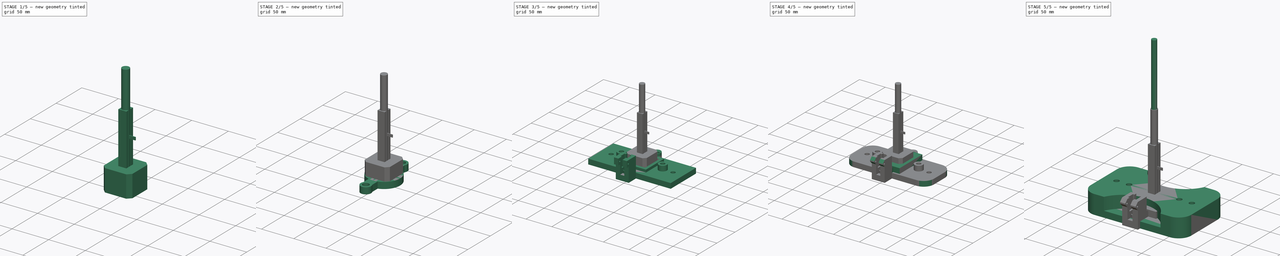
[diagram: build sequence overview — one tinted view per stage of 5, left to right]
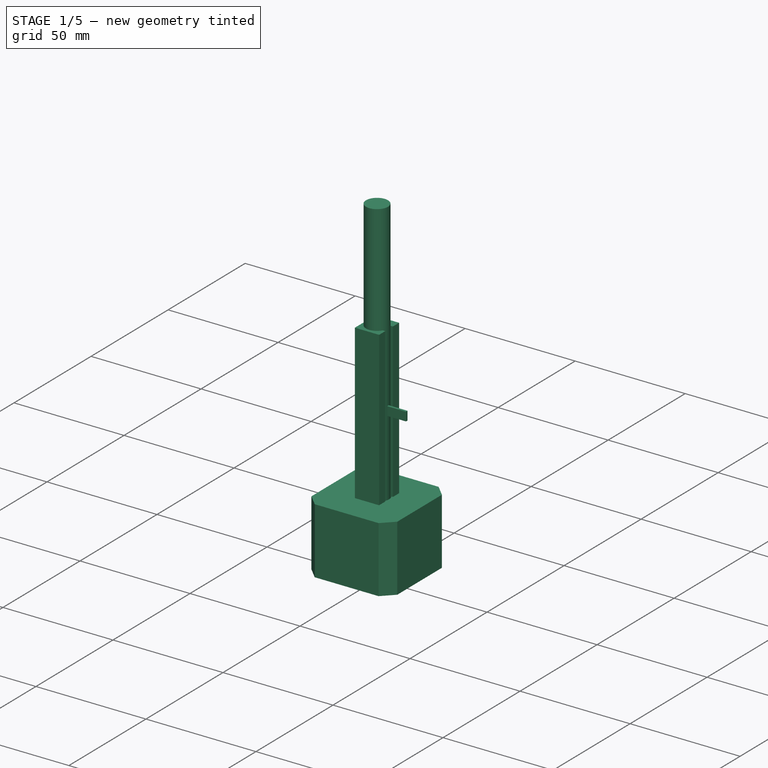
[diagram: stage 1 of 5 — iso view after this stage's code; geometry added in this stage tinted green]
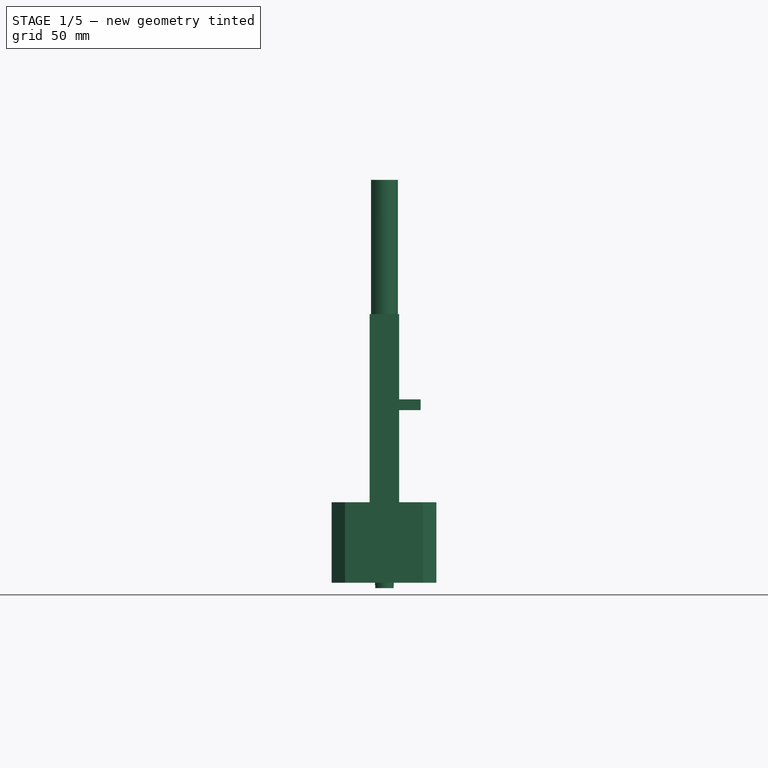
[diagram: stage 1 of 5 — front view after this stage's code; geometry added in this stage tinted green]
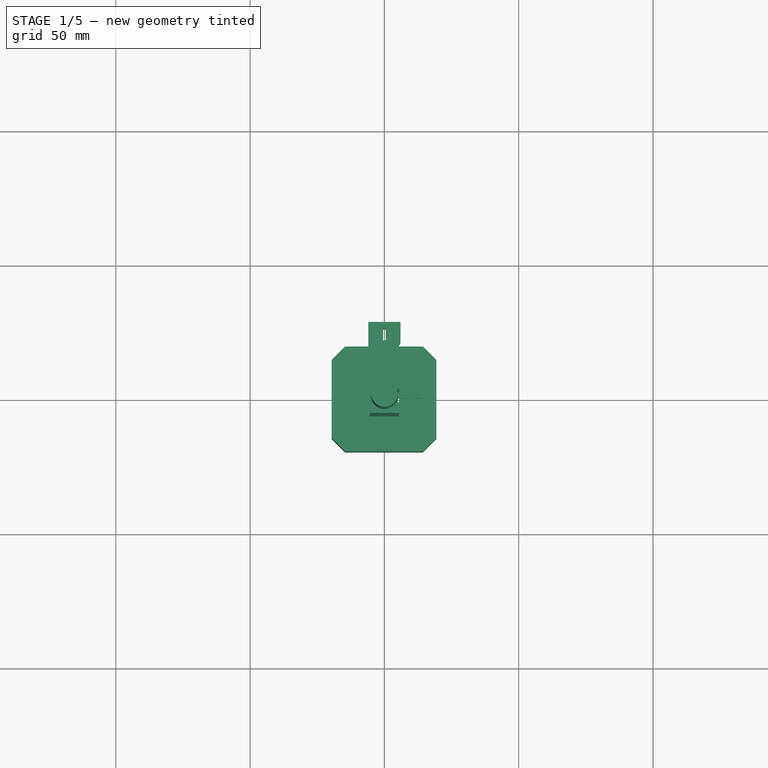
[diagram: stage 1 of 5 — top view after this stage's code; geometry added in this stage tinted green]
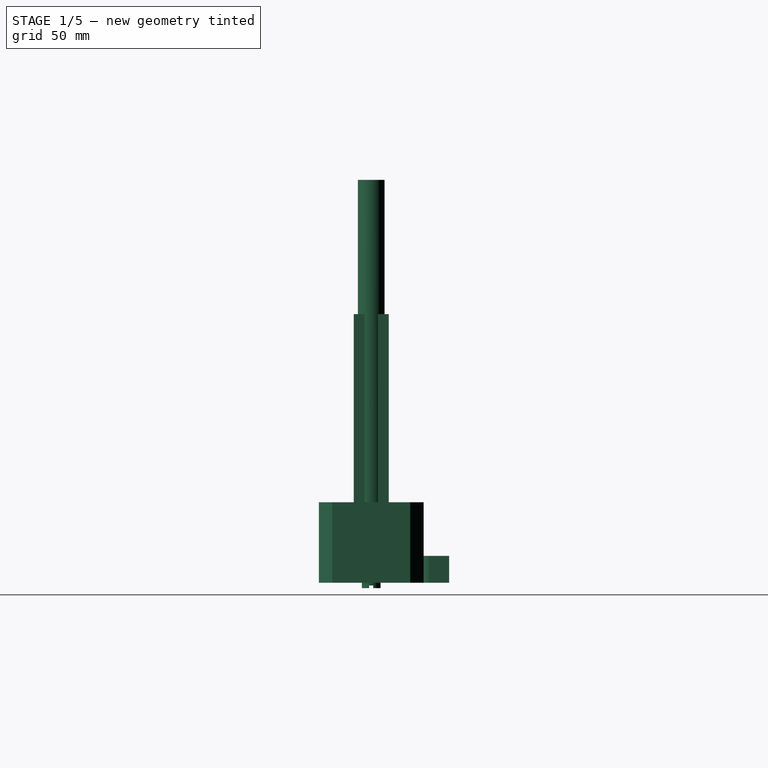
[diagram: stage 1 of 5 — right view after this stage's code; geometry added in this stage tinted green]
FCSTD DOCUMENT  (FreeCAD 0.18R16117 (Git))
Label: TCM2 - Build
License: All rights reserved
LicenseURL: http://en.wikipedia.org/wiki/All_rights_reserved
objects: Sketcher::SketchObject×53, PartDesign::Pad×27, PartDesign::Pocket×26, PartDesign::Fillet×18, PartDesign::Body×14, PartDesign::Chamfer×12
note: 203 computed .brp shape members not serialized (recipe doc carries the construction recipe); baked Part::Feature solids carry a one-line shape summary decoded from their .brp

FEATURE [PartDesign::Body] Body008
  Group = -> [Sketch031,Pad014,Sketch032,Pad015,Sketch033,Pocket017,Sketch034,Pocket018,Sketch035,Pocket019,Fillet008,Fillet009,Fillet010,Fillet011,Sketch036,Pad016,Sketch037,Pad017,Sketch038,Pocket020,Sketch039,Pad018,Fillet012,Fillet013,Chamfer006,Chamfer007]
  Origin = -> Origin008
  Placement = pos=(0,0,156) rot=(0,0,1;1.5708rad)
  Tip = -> Chamfer007
FEATURE [Sketcher::SketchObject] Sketch040
  MapMode = 5
  Support = -> [XY_Plane009]
  sketch-geometry (8):
    g0: ArcOfCircle CenterX=0 CenterY=0 CenterZ=0 NormalX=0 NormalY=0 NormalZ=1 AngleXU=0 Radius=5 StartAngle=2.2143 EndAngle=7.21048
    g1: LineSegment StartX=-3 StartY=4 StartZ=0 EndX=-3 EndY=19 EndZ=0
    g2: LineSegment StartX=3 StartY=4 StartZ=0 EndX=3 EndY=19 EndZ=0
    g3: LineSegment StartX=-3 StartY=19 StartZ=0 EndX=-6 EndY=19 EndZ=0
    g4: LineSegment StartX=-6 StartY=19 StartZ=0 EndX=-6 EndY=29 EndZ=0
    g5: LineSegment StartX=-6 StartY=29 StartZ=0 EndX=6 EndY=29 EndZ=0
    g6: LineSegment StartX=6 StartY=29 StartZ=0 EndX=6 EndY=19 EndZ=0
    g7: LineSegment StartX=6 StartY=19 StartZ=0 EndX=3 EndY=19 EndZ=0
  constraints (24):
    c: Coincident(g0,g-1)
    c: Coincident(g1,g0)
    c: Coincident(g0,g2)
    c: Parallel(g1,g2)
    c: Parallel(g-2,g1)
    c: Radius(g0) = 5
    c: DistanceY(g0,g0) = 4
    c: DistanceY(g0,g0) = 4
    c: Distance(g2) = 15
    c: Distance(g1) = 15
    c: Coincident(g2,g7)
    c: Coincident(g6,g7)
    c: Coincident(g5,g6)
    c: Coincident(g4,g5)
    c: Coincident(g4,g3)
    c: Coincident(g3,g1)
    c: Parallel(g3,g-1)
    c: Parallel(g7,g-1)
    c: Parallel(g6,g-2)
    c: Parallel(g4,g6)
    c: Parallel(g5,g-1)
    c: Distance(g7) = 3
    c: Distance(g3) = 3
    c: Distance(g6) = 10
FEATURE [PartDesign::Pad] Pad019
  Length = 5
  Length2 = 100
  Profile = -> Sketch040
  Type = 0
FEATURE [Sketcher::SketchObject] Sketch041
  MapMode = 5
  Placement = pos=(0,0,5) rot=(0,0,1;0rad)
  Support = -> [Pad019]
  sketch-geometry (4):
    g0: LineSegment StartX=-6 StartY=29 StartZ=0 EndX=6 EndY=29 EndZ=0
    g1: LineSegment StartX=6 StartY=29 StartZ=0 EndX=6 EndY=19 EndZ=0
    g2: LineSegment StartX=6 StartY=19 StartZ=0 EndX=-6 EndY=19 EndZ=0
    g3: LineSegment StartX=-6 StartY=19 StartZ=0 EndX=-6 EndY=29 EndZ=0
  constraints (12):
    c: Coincident(g0,g1)
    c: Coincident(g1,g2)
    c: Coincident(g2,g3)
    c: Coincident(g3,g0)
    c: Horizontal(g0)
    c: Horizontal(g2)
    c: Vertical(g1)
    c: Vertical(g3)
    c: Distance(g2) = 12
    c: DistanceX(g-1,g1) = 6
    c: Distance(g1) = 10
    c: DistanceY(g-1,g1) = 19
FEATURE [PartDesign::Pad] Pad020
  BaseFeature = -> Pad019
  Length = 5
  Length2 = 100
  Profile = -> Sketch041
  Type = 0
FEATURE [Sketcher::SketchObject] Sketch042
  MapMode = 5
  Placement = pos=(0,0,10) rot=(0,0,1;0rad)
  Support = -> [Pad020]
  sketch-geometry (4):
    g0: LineSegment StartX=-0.5 StartY=26.2739 StartZ=0 EndX=0.5 EndY=26.2739 EndZ=0
    g1: LineSegment StartX=0.5 StartY=26.2739 StartZ=0 EndX=0.5 EndY=22.0739 EndZ=0
    g2: LineSegment StartX=0.5 StartY=22.0739 StartZ=0 EndX=-0.5 EndY=22.0739 EndZ=0
    g3: LineSegment StartX=-0.5 StartY=22.0739 StartZ=0 EndX=-0.5 EndY=26.2739 EndZ=0
  constraints (11):
    c: Coincident(g0,g1)
    c: Coincident(g1,g2)
    c: Coincident(g2,g3)
    c: Coincident(g3,g0)
    c: Horizontal(g0)
    c: Horizontal(g2)
    c: Vertical(g1)
    c: Vertical(g3)
    c: Distance(g0) = 1
    c: Distance(g1) = 4.2
    c: DistanceX(g0,g-1) = 0.5
FEATURE [PartDesign::Pocket] Pocket021
  BaseFeature = -> Pad020
  Length = 10
  Length2 = 100
  Profile = -> Sketch042
  Type = 0
FEATURE [PartDesign::Fillet] Fillet014
  Base = -> Pocket021 [Edge38]
  BaseFeature = -> Pocket021
  Radius = 2.9
FEATURE [PartDesign::Body] Body009
  Group = -> [Sketch040,Pad019,Sketch041,Pad020,Sketch042,Pocket021,Fillet014,Fillet015,Fillet016,Fillet017,Sketch043,Pocket022]
  Origin = -> Origin009
  Placement = pos=(0,-25,171) rot=(1,0,0;1.5708rad)
  Tip = -> Pocket022
FEATURE [Sketcher::SketchObject] Sketch044
  MapMode = 5
  Support = -> [XY_Plane010]
  sketch-geometry (1):
    g0: Circle CenterX=0 CenterY=0 CenterZ=0 NormalX=0 NormalY=0 NormalZ=1 AngleXU=0 Radius=2.2
  constraints (2):
    c: Coincident(g0,g-1)
    c: Radius(g0) = 2.2
FEATURE [PartDesign::Pad] Pad021
  Length = 30
  Length2 = 100
  Profile = -> Sketch044
  Type = 0
FEATURE [Sketcher::SketchObject] Sketch045
  MapMode = 5
  Placement = pos=(0,0,0) rot=(1,0,0;3.14159rad)
  Support = -> [Pad021]
  sketch-geometry (1):
    g0: Circle CenterX=0 CenterY=0 CenterZ=0 NormalX=0 NormalY=0 NormalZ=1 AngleXU=0 Radius=3.5
  constraints (2):
    c: Coincident(g0,g-1)
    c: Radius(g0) = 3.5
FEATURE [PartDesign::Pad] Pad022
  BaseFeature = -> Pad021
  Length = 2
  Length2 = 100
  Profile = -> Sketch045
  Type = 0
FEATURE [Sketcher::SketchObject] Sketch046
  MapMode = 5
  Placement = pos=(0,0,-2) rot=(1,0,0;3.14159rad)
  Support = -> [Pad022]
  sketch-geometry (4):
    g0: LineSegment StartX=-4.01333 StartY=0.808145 StartZ=0 EndX=4.15549 EndY=0.808145 EndZ=0
    g1: LineSegment StartX=4.15549 StartY=0.808145 StartZ=0 EndX=4.15549 EndY=-0.764461 EndZ=0
    g2: LineSegment StartX=4.15549 StartY=-0.764461 StartZ=0 EndX=-4.01333 EndY=-0.764461 EndZ=0
    g3: LineSegment StartX=-4.01333 StartY=-0.764461 StartZ=0 EndX=-4.01333 EndY=0.808145 EndZ=0
  constraints (8):
    c: Coincident(g0,g1)
    c: Coincident(g1,g2)
    c: Coincident(g2,g3)
    c: Coincident(g3,g0)
    c: Horizontal(g0)
    c: Horizontal(g2)
    c: Vertical(g1)
    c: Vertical(g3)
FEATURE [PartDesign::Pocket] Pocket023
  BaseFeature = -> Pad022
  Length = 1
  Length2 = 100
  Profile = -> Sketch046
  Type = 0
FEATURE [PartDesign::Body] Body010
  Group = -> [Sketch044,Pad021,Sketch045,Pad022,Sketch046,Pocket023]
  Origin = -> Origin010
  Placement = pos=(0,-30,171) rot=(1,0,0;4.71239rad)
  Tip = -> Pocket023
FEATURE [Sketcher::SketchObject] Sketch047
  MapMode = 5
  Support = -> [XY_Plane011]
  sketch-geometry (4):
    g0: LineSegment StartX=-19.65 StartY=19.5 StartZ=0 EndX=19.35 EndY=19.5 EndZ=0
    g1: LineSegment StartX=19.35 StartY=19.5 StartZ=0 EndX=19.35 EndY=-19.5 EndZ=0
    g2: LineSegment StartX=19.35 StartY=-19.5 StartZ=0 EndX=-19.65 EndY=-19.5 EndZ=0
    g3: LineSegment StartX=-19.65 StartY=-19.5 StartZ=0 EndX=-19.65 EndY=19.5 EndZ=0
  constraints (12):
    c: Coincident(g0,g1)
    c: Coincident(g1,g2)
    c: Coincident(g2,g3)
    c: Coincident(g3,g0)
    c: Horizontal(g0)
    c: Horizontal(g2)
    c: Vertical(g1)
    c: Vertical(g3)
    c: Distance(g1) = 39
    c: Distance(g0) = 39
    c: DistanceY(g-1,g0) = 19.5
    c: DistanceX(g0,g-1) = 19.65
FEATURE [PartDesign::Pad] Pad023
  Length = 30
  Length2 = 100
  Profile = -> Sketch047
  Type = 0
FEATURE [Sketcher::SketchObject] Sketch048
  MapMode = 5
  Placement = pos=(0,0,30) rot=(0,0,1;0rad)
  Support = -> [Pad023]
  sketch-geometry (1):
    g0: Circle CenterX=0 CenterY=0 CenterZ=0 NormalX=0 NormalY=0 NormalZ=1 AngleXU=0 Radius=5.5
  constraints (2):
    c: Coincident(g0,g-1)
    c: Radius(g0) = 5.5
FEATURE [PartDesign::Pocket] Pocket024
  BaseFeature = -> Pad023
  Length = 30
  Length2 = 100
  Profile = -> Sketch048
  Type = 0
FEATURE [PartDesign::Chamfer] Chamfer008
  Base = -> Pocket024 [Edge5]
  BaseFeature = -> Pocket024
  Size = 5
FEATURE [PartDesign::Chamfer] Chamfer009
  Base = -> Chamfer008 [Edge17]
  BaseFeature = -> Chamfer008
  Size = 5
FEATURE [PartDesign::Chamfer] Chamfer010
  Base = -> Chamfer009 [Edge15]
  BaseFeature = -> Chamfer009
  Size = 5
FEATURE [PartDesign::Chamfer] Chamfer011
  Base = -> Chamfer010 [Edge16]
  BaseFeature = -> Chamfer010
  Size = 5
FEATURE [PartDesign::Body] Body011
  Group = -> [Sketch047,Pad023,Sketch048,Pocket024,Chamfer008,Chamfer009,Chamfer010,Chamfer011]
  Origin = -> Origin011
  Placement = pos=(0,0,207) rot=(0,0,1;0rad)
  Tip = -> Chamfer011
FEATURE [Sketcher::SketchObject] Sketch049
  MapMode = 5
  Support = -> [XY_Plane012]
  sketch-geometry (1):
    g0: Circle CenterX=0 CenterY=0 CenterZ=0 NormalX=0 NormalY=0 NormalZ=1 AngleXU=0 Radius=5
  constraints (2):
    c: Coincident(g0,g-1)
    c: Radius(g0) = 5
FEATURE [PartDesign::Pad] Pad024
  Length = 150
  Length2 = 100
  Profile = -> Sketch049
  Type = 0
FEATURE [PartDesign::Body] Body012
  Group = -> [Sketch049,Pad024]
  Origin = -> Origin012
  Placement = pos=(0,0,167) rot=(0,0,1;0rad)
  Tip = -> Pad024
FEATURE [Sketcher::SketchObject] Sketch050
  MapMode = 5
  Support = -> [XY_Plane013]
  sketch-geometry (4):
    g0: LineSegment StartX=-5.5 StartY=6.5 StartZ=0 EndX=5.5 EndY=6.5 EndZ=0
    g1: LineSegment StartX=5.5 StartY=6.5 StartZ=0 EndX=5.5 EndY=-6.5 EndZ=0
    g2: LineSegment StartX=5.5 StartY=-6.5 StartZ=0 EndX=-5.5 EndY=-6.5 EndZ=0
    g3: LineSegment StartX=-5.5 StartY=-6.5 StartZ=0 EndX=-5.5 EndY=6.5 EndZ=0
  constraints (12):
    c: Coincident(g0,g1)
    c: Coincident(g1,g2)
    c: Coincident(g2,g3)
    c: Coincident(g3,g0)
    c: Horizontal(g0)
    c: Horizontal(g2)
    c: Vertical(g1)
    c: Vertical(g3)
    c: Distance(g3) = 13
    c: Distance(g0) = 11
    c: DistanceX(g0,g-1) = 5.5
    c: DistanceY(g-1,g0) = 6.5
FEATURE [PartDesign::Pad] Pad025
  Length = 100
  Length2 = 100
  Profile = -> Sketch050
  Type = 0
FEATURE [Sketcher::SketchObject] Sketch051
  MapMode = 5
  Placement = pos=(0,0,100) rot=(0,0,1;0rad)
  Support = -> [Pad025]
  sketch-geometry (4):
    g0: LineSegment StartX=3.5 StartY=2.5 StartZ=0 EndX=5.5 EndY=2.5 EndZ=0
    g1: LineSegment StartX=5.5 StartY=2.5 StartZ=0 EndX=5.5 EndY=-2.5 EndZ=0
    g2: LineSegment StartX=5.5 StartY=-2.5 StartZ=0 EndX=3.5 EndY=-2.5 EndZ=0
    g3: LineSegment StartX=3.5 StartY=-2.5 StartZ=0 EndX=3.5 EndY=2.5 EndZ=0
  constraints (12):
    c: Coincident(g0,g1)
    c: Coincident(g1,g2)
    c: Coincident(g2,g3)
    c: Coincident(g3,g0)
    c: Horizontal(g0)
    c: Horizontal(g2)
    c: Vertical(g1)
    c: Vertical(g3)
    c: Distance(g3) = 5
    c: Distance(g0) = 2
    c: DistanceX(g-1,g0) = 5.5
    c: DistanceY(g-1,g0) = 2.5
FEATURE [PartDesign::Pocket] Pocket025
  BaseFeature = -> Pad025
  Length = 100
  Length2 = 100
  Profile = -> Sketch051
  Type = 0
FEATURE [Sketcher::SketchObject] Sketch052
  MapMode = 5
  Placement = pos=(3.5,0,0) rot=(0.57735,0.57735,0.57735;2.0944rad)
  Support = -> [Pocket025]
  sketch-geometry (4):
    g0: LineSegment StartX=-0.473953 StartY=68.2649 StartZ=0 EndX=0.526047 EndY=68.2649 EndZ=0
    g1: LineSegment StartX=0.526047 StartY=68.2649 StartZ=0 EndX=0.526047 EndY=64.2649 EndZ=0
    g2: LineSegment StartX=0.526047 StartY=64.2649 StartZ=0 EndX=-0.473953 EndY=64.2649 EndZ=0
    g3: LineSegment StartX=-0.473953 StartY=64.2649 StartZ=0 EndX=-0.473953 EndY=68.2649 EndZ=0
  constraints (10):
    c: Coincident(g0,g1)
    c: Coincident(g1,g2)
    c: Coincident(g2,g3)
    c: Coincident(g3,g0)
    c: Horizontal(g0)
    c: Horizontal(g2)
    c: Vertical(g1)
    c: Vertical(g3)
    c: Distance(g0) = 1
    c: Distance(g1) = 4
FEATURE [PartDesign::Pad] Pad026
  BaseFeature = -> Pocket025
  Length = 10
  Length2 = 100
  Profile = -> Sketch052
  Type = 0
FEATURE [PartDesign::Body] Body013
  Group = -> [Sketch050,Pad025,Sketch051,Pocket025,Sketch052,Pad026]
  Origin = -> Origin013
  Placement = pos=(0,-44,129) rot=(0,0,1;1.5708rad)
  Tip = -> Pad026
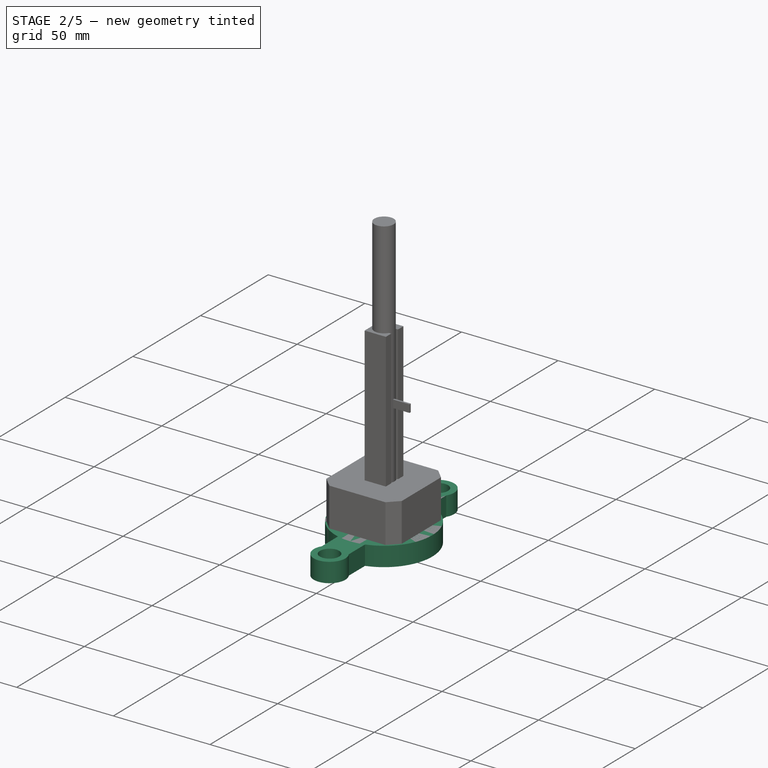
[diagram: stage 2 of 5 — iso view after this stage's code; geometry added in this stage tinted green]
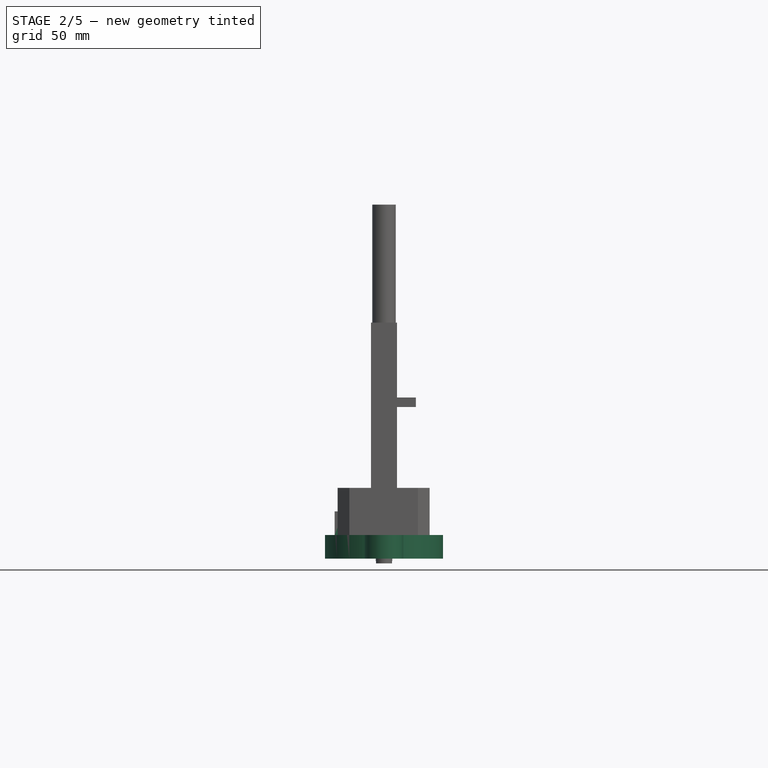
[diagram: stage 2 of 5 — front view after this stage's code; geometry added in this stage tinted green]
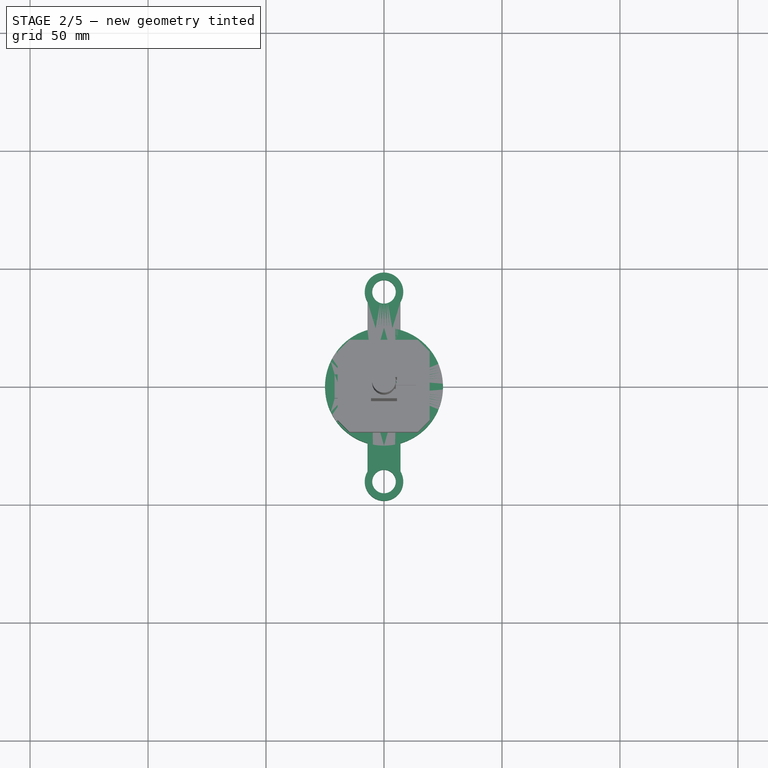
[diagram: stage 2 of 5 — top view after this stage's code; geometry added in this stage tinted green]
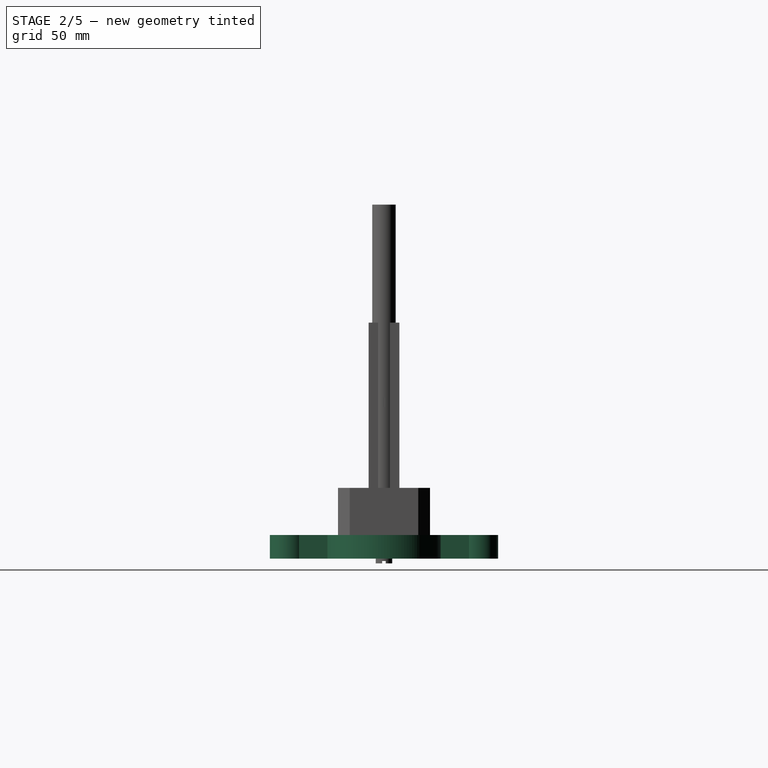
[diagram: stage 2 of 5 — right view after this stage's code; geometry added in this stage tinted green]
FEATURE [PartDesign::Body] Body007
  Group = -> [Sketch018,Pad007,Sketch019,Pocket010,Sketch020,Pad008,Sketch021,Pocket011,Sketch022,Pad009,Sketch005,Pocket012,Sketch023,Pocket013,Sketch024,Pad010,Sketch025,Pocket014,Sketch026,Pocket015,Sketch027,Pad011,Sketch028,Pocket016,Chamfer,Chamfer001,Chamfer002,Chamfer003,Fillet004,Fillet005,Fillet006,Fillet007,Sketch029,Pad012,Sketch030,Pad013,Chamfer004,Chamfer005]
  Origin = -> Origin007
  Placement = pos=(-1.14e-14,0,250) rot=(0,1,0;3.14159rad)
  Tip = -> Chamfer005
FEATURE [Sketcher::SketchObject] Sketch031
  MapMode = 5
  Support = -> [XY_Plane008]
  sketch-geometry (1):
    g0: Circle CenterX=0 CenterY=0 CenterZ=0 NormalX=0 NormalY=0 NormalZ=1 AngleXU=0 Radius=25
  constraints (2):
    c: Coincident(g-1,g0)
    c: Radius(g0) = 25
FEATURE [PartDesign::Pad] Pad014
  Length = 10
  Length2 = 100
  Profile = -> Sketch031
  Type = 0
FEATURE [Sketcher::SketchObject] Sketch032
  MapMode = 5
  Placement = pos=(0,0,10) rot=(0,0,1;0rad)
  Support = -> [Pad014]
  sketch-geometry (4):
    g0: LineSegment StartX=-10 StartY=7.5 StartZ=0 EndX=10 EndY=7.5 EndZ=0
    g1: LineSegment StartX=10 StartY=7.5 StartZ=0 EndX=10 EndY=-7.5 EndZ=0
    g2: LineSegment StartX=10 StartY=-7.5 StartZ=0 EndX=-10 EndY=-7.5 EndZ=0
    g3: LineSegment StartX=-10 StartY=-7.5 StartZ=0 EndX=-10 EndY=7.5 EndZ=0
  constraints (12):
    c: Coincident(g0,g1)
    c: Coincident(g1,g2)
    c: Coincident(g2,g3)
    c: Coincident(g3,g0)
    c: Horizontal(g0)
    c: Horizontal(g2)
    c: Vertical(g1)
    c: Vertical(g3)
    c: Distance(g1) = 15
    c: Distance(g0) = 20
    c: DistanceY(g-1,g0) = 7.5
    c: DistanceX(g0,g-1) = 10
FEATURE [PartDesign::Pad] Pad015
  BaseFeature = -> Pad014
  Length = 12
  Length2 = 100
  Profile = -> Sketch032
  Type = 0
FEATURE [Sketcher::SketchObject] Sketch033
  MapMode = 5
  Placement = pos=(0,0,22) rot=(0,0,1;0rad)
  Support = -> [Pad015]
  sketch-geometry (1):
    g0: Circle CenterX=0 CenterY=0 CenterZ=0 NormalX=0 NormalY=0 NormalZ=1 AngleXU=0 Radius=2.7
  constraints (2):
    c: Radius(g0) = 2.7
    c: Coincident(g0,g-1)
FEATURE [PartDesign::Pocket] Pocket017
  BaseFeature = -> Pad015
  Length = 10
  Length2 = 100
  Profile = -> Sketch033
  Type = 0
FEATURE [Sketcher::SketchObject] Sketch034
  MapMode = 5
  Placement = pos=(0,0,22) rot=(0,0,1;0rad)
  Support = -> [Pocket017]
  sketch-geometry (8):
    g0: LineSegment StartX=-8.4 StartY=3.6 StartZ=0 EndX=-4.3 EndY=3.6 EndZ=0
    g1: LineSegment StartX=-4.3 StartY=3.6 StartZ=0 EndX=-4.3 EndY=-3.6 EndZ=0
    g2: LineSegment StartX=-4.3 StartY=-3.6 StartZ=0 EndX=-8.4 EndY=-3.6 EndZ=0
    g3: LineSegment StartX=-8.4 StartY=-3.6 StartZ=0 EndX=-8.4 EndY=3.6 EndZ=0
    g4: LineSegment StartX=4.3 StartY=3.6 StartZ=0 EndX=8.4 EndY=3.6 EndZ=0
    g5: LineSegment StartX=8.4 StartY=3.6 StartZ=0 EndX=8.4 EndY=-3.6 EndZ=0
    g6: LineSegment StartX=8.4 StartY=-3.6 StartZ=0 EndX=4.3 EndY=-3.6 EndZ=0
    g7: LineSegment StartX=4.3 StartY=-3.6 StartZ=0 EndX=4.3 EndY=3.6 EndZ=0
  constraints (24):
    c: Coincident(g0,g1)
    c: Coincident(g1,g2)
    c: Coincident(g2,g3)
    c: Coincident(g3,g0)
    c: Horizontal(g0)
    c: Horizontal(g2)
    c: Vertical(g1)
    c: Vertical(g3)
    c: Distance(g0) = 4.1
    c: DistanceX(g0,g-1) = 4.3
    c: Coincident(g4,g5)
    c: Coincident(g5,g6)
    c: Coincident(g6,g7)
    c: Coincident(g7,g4)
    c: Horizontal(g4)
    c: Horizontal(g6)
    c: Vertical(g5)
    c: Vertical(g7)
    c: Distance(g4) = 4.1
    c: Distance(g7) = 7.2
    c: Distance(g1) = 7.2
    c: DistanceY(g-1,g0) = 3.6
    c: DistanceY(g-1,g4) = 3.6
    c: DistanceX(g-1,g4) = 4.3
FEATURE [PartDesign::Pocket] Pocket018
  BaseFeature = -> Pocket017
  Length = 12
  Length2 = 100
  Profile = -> Sketch034
  Type = 0
FEATURE [Sketcher::SketchObject] Sketch035
  MapMode = 5
  Placement = pos=(10,0,0) rot=(0.57735,0.57735,0.57735;2.0944rad)
  Support = -> [Pocket018]
  sketch-geometry (1):
    g0: Circle CenterX=0 CenterY=15 CenterZ=0 NormalX=0 NormalY=0 NormalZ=1 AngleXU=0 Radius=2.2
  constraints (3):
    c: PointOnObject(g0,g-2)
    c: Radius(g0) = 2.2
    c: DistanceY(g-1,g0) = 15
FEATURE [PartDesign::Pocket] Pocket019
  BaseFeature = -> Pocket018
  Length = 30
  Length2 = 100
  Profile = -> Sketch035
  Type = 0
FEATURE [PartDesign::Fillet] Fillet008
  Base = -> Pocket019 [Edge8]
  BaseFeature = -> Pocket019
  Radius = 5
FEATURE [PartDesign::Fillet] Fillet009
  Base = -> Fillet008 [Edge8]
  BaseFeature = -> Fillet008
  Radius = 5
FEATURE [PartDesign::Fillet] Fillet010
  Base = -> Fillet009 [Edge16]
  BaseFeature = -> Fillet009
  Radius = 5
FEATURE [PartDesign::Fillet] Fillet011
  Base = -> Fillet010 [Edge16]
  BaseFeature = -> Fillet010
  Radius = 5
FEATURE [Sketcher::SketchObject] Sketch036
  MapMode = 5
  Placement = pos=(0,0,10) rot=(0,0,1;0rad)
  Support = -> [Fillet011]
  sketch-geometry (8):
    g0: LineSegment StartX=-7 StartY=36 StartZ=0 EndX=-7 EndY=-36 EndZ=0
    g1: LineSegment StartX=7 StartY=36 StartZ=0 EndX=7 EndY=-36 EndZ=0
    g2: ArcOfCircle CenterX=9e-16 CenterY=-40.2 CenterZ=0 NormalX=0 NormalY=0 NormalZ=1 AngleXU=0 Radius=8.16333 StartAngle=2.60117 EndAngle=4.71239
    g3: ArcOfCircle CenterX=9e-16 CenterY=-40.2 CenterZ=0 NormalX=0 NormalY=0 NormalZ=1 AngleXU=0 Radius=8.16333 StartAngle=4.71239 EndAngle=6.8236
    g4: ArcOfCircle CenterX=0 CenterY=40.2 CenterZ=0 NormalX=0 NormalY=0 NormalZ=1 AngleXU=0 Radius=8.16333 StartAngle=1.5708 EndAngle=3.68201
    g5: ArcOfCircle CenterX=0 CenterY=40.2 CenterZ=0 NormalX=0 NormalY=0 NormalZ=1 AngleXU=0 Radius=8.16333 StartAngle=5.74277 EndAngle=7.85398
    g6: Circle CenterX=9e-16 CenterY=-40.2 CenterZ=0 NormalX=0 NormalY=0 NormalZ=1 AngleXU=0 Radius=5
    g7: Circle CenterX=0 CenterY=40.2 CenterZ=0 NormalX=0 NormalY=0 NormalZ=1 AngleXU=0 Radius=5
  constraints (24):
    c: Coincident(g4,g5)
    c: Coincident(g4,g0)
    c: Coincident(g1,g5)
    c: Coincident(g0,g2)
    c: Coincident(g1,g3)
    c: Coincident(g3,g2)
    c: PointOnObject(g4,g-2)
    c: Parallel(g0,g-2)
    c: Parallel(g1,g-2)
    c: DistanceX(g0,g-1) = 7
    c: Distance(g1) = 72
    c: Distance(g0) = 72
    c: DistanceY(g0,g-1) = 36
    c: DistanceY(g1,g-1) = 36
    c: Coincident(g2,g3)
    c: Coincident(g6,g2)
    c: Radius(g6) = 5
    c: DistanceY(g2,g1) = 4.2
    c: PointOnObject(g2,g-2)
    c: Coincident(g4,g5)
    c: PointOnObject(g4,g-2)
    c: Coincident(g7,g4)
    c: Radius(g7) = 5
    c: DistanceY(g1,g4) = 4.2
FEATURE [PartDesign::Pad] Pad016
  BaseFeature = -> Fillet011
  Length = 10
  Length2 = 100
  Profile = -> Sketch036
  Reversed = true
  Type = 0
FEATURE [Sketcher::SketchObject] Sketch037
  MapMode = 5
  Placement = pos=(0,0,10) rot=(0,0,1;0rad)
  Support = -> [Pad016]
  sketch-geometry (4):
    g0: LineSegment StartX=-20.9 StartY=5 StartZ=0 EndX=-17 EndY=5 EndZ=0
    g1: LineSegment StartX=-17 StartY=5 StartZ=0 EndX=-17 EndY=-5 EndZ=0
    g2: LineSegment StartX=-17 StartY=-5 StartZ=0 EndX=-20.9 EndY=-5 EndZ=0
    g3: LineSegment StartX=-20.9 StartY=-5 StartZ=0 EndX=-20.9 EndY=5 EndZ=0
  constraints (12):
    c: Coincident(g0,g1)
    c: Coincident(g1,g2)
    c: Coincident(g2,g3)
    c: Coincident(g3,g0)
    c: Horizontal(g0)
    c: Horizontal(g2)
    c: Vertical(g1)
    c: Vertical(g3)
    c: Distance(g0) = 3.9
    c: Distance(g1) = 10
    c: DistanceY(g-1,g0) = 5
    c: DistanceX(g0,g-1) = 17
FEATURE [PartDesign::Pad] Pad017
  BaseFeature = -> Pad016
  Length = 10
  Length2 = 100
  Profile = -> Sketch037
  Type = 0
FEATURE [Sketcher::SketchObject] Sketch038
  MapMode = 5
  Placement = pos=(-20.9,0,0) rot=(0.57735,-0.57735,-0.57735;2.0944rad)
  Support = -> [Pad017]
  sketch-geometry (1):
    g0: Circle CenterX=0 CenterY=15 CenterZ=0 NormalX=0 NormalY=0 NormalZ=1 AngleXU=0 Radius=2.2
  constraints (3):
    c: PointOnObject(g0,g-2)
    c: Radius(g0) = 2.2
    c: DistanceY(g-1,g0) = 15
FEATURE [PartDesign::Pocket] Pocket020
  BaseFeature = -> Pad017
  Length = 4
  Length2 = 100
  Profile = -> Sketch038
  Type = 0
FEATURE [PartDesign::Fillet] Fillet015
  Base = -> Fillet014 [Edge43]
  BaseFeature = -> Fillet014
  Radius = 2.9
FEATURE [PartDesign::Fillet] Fillet016
  Base = -> Fillet015 [Edge48]
  BaseFeature = -> Fillet015
  Radius = 2.9
FEATURE [PartDesign::Fillet] Fillet017
  Base = -> Fillet016 [Edge47]
  BaseFeature = -> Fillet016
  Radius = 2.9
FEATURE [Sketcher::SketchObject] Sketch043
  MapMode = 5
  Placement = pos=(0,0,5) rot=(0,0,1;0rad)
  Support = -> [Fillet017]
  sketch-geometry (1):
    g0: Circle CenterX=0 CenterY=0 CenterZ=0 NormalX=0 NormalY=0 NormalZ=1 AngleXU=0 Radius=2.2
  constraints (2):
    c: Coincident(g0,g-1)
    c: Radius(g0) = 2.2
FEATURE [PartDesign::Pocket] Pocket022
  BaseFeature = -> Fillet017
  Length = 5
  Length2 = 100
  Profile = -> Sketch043
  Type = 0
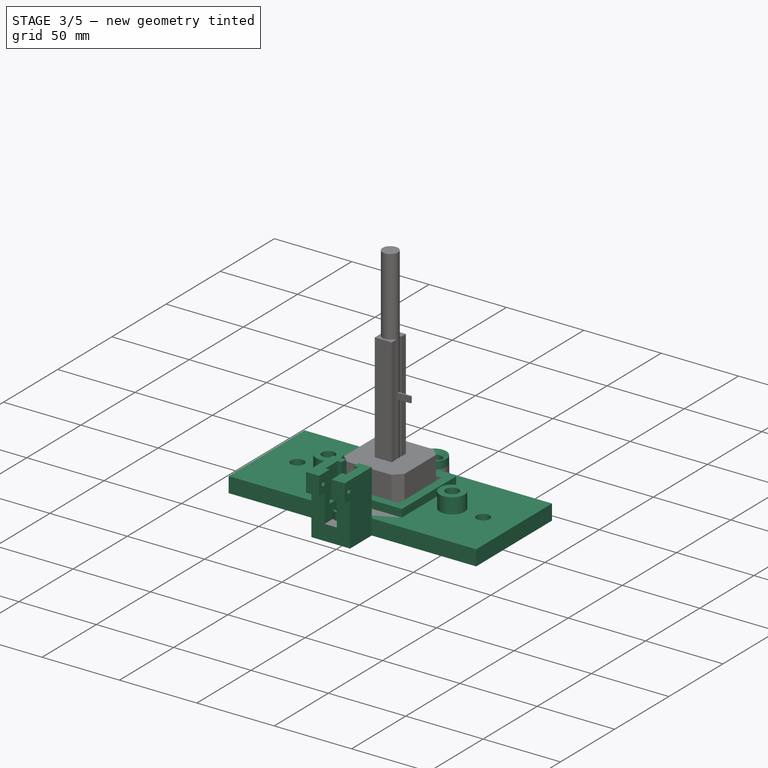
[diagram: stage 3 of 5 — iso view after this stage's code; geometry added in this stage tinted green]
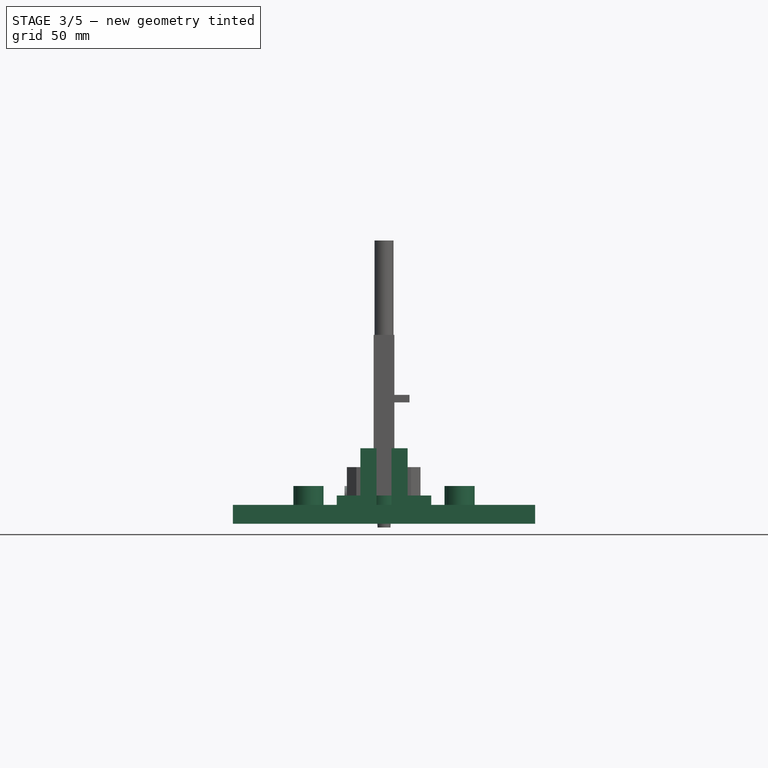
[diagram: stage 3 of 5 — front view after this stage's code; geometry added in this stage tinted green]
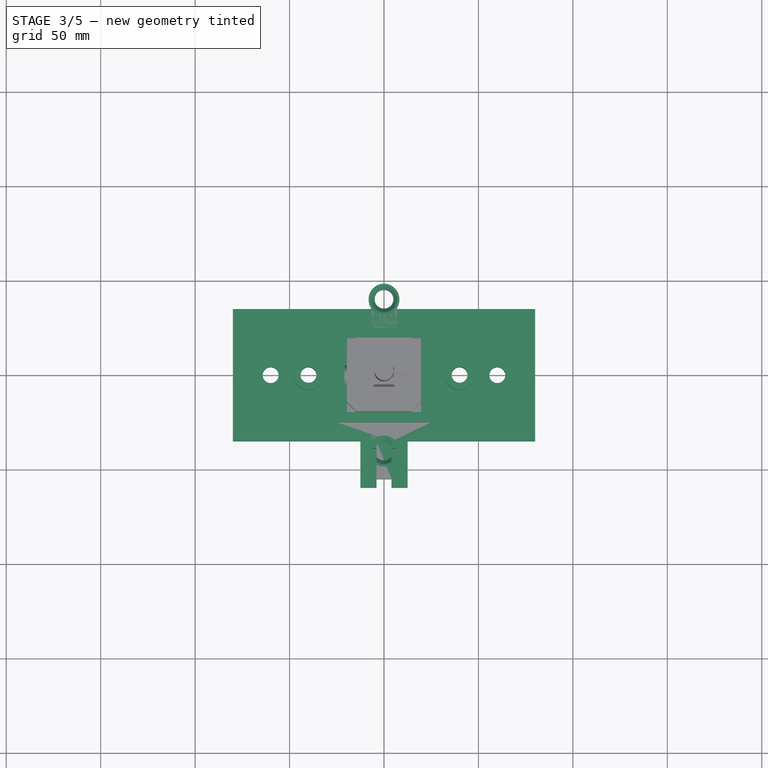
[diagram: stage 3 of 5 — top view after this stage's code; geometry added in this stage tinted green]
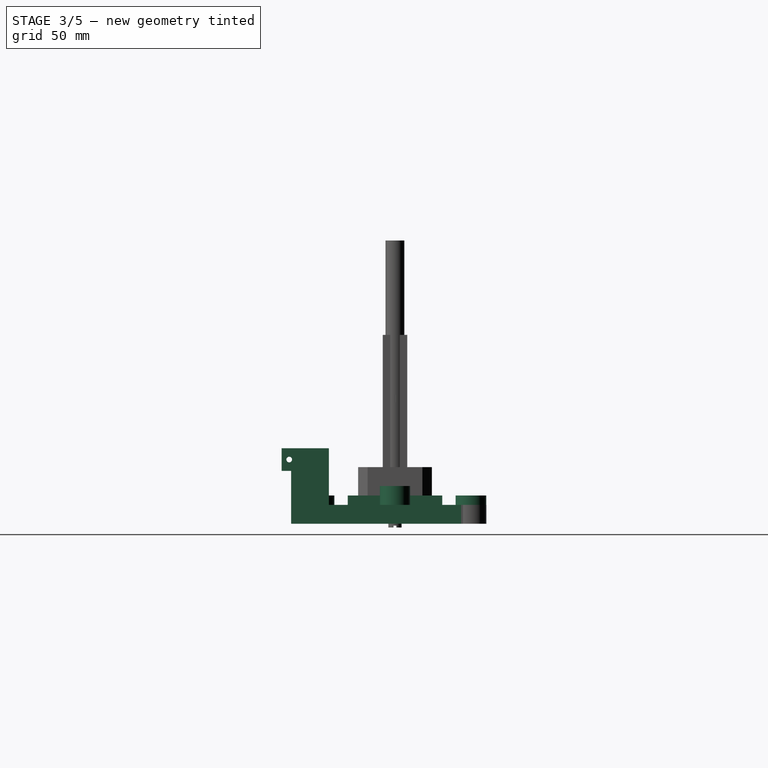
[diagram: stage 3 of 5 — right view after this stage's code; geometry added in this stage tinted green]
FEATURE [PartDesign::Body] Body006
  Group = -> [Sketch015,Pad006,Sketch016,Pocket008,Sketch017,Pocket009]
  Origin = -> Origin006
  Placement = pos=(0,0,94) rot=(0,0,1;0rad)
  Tip = -> Pocket009
FEATURE [Sketcher::SketchObject] Sketch018
  MapMode = 5
  Support = -> [XY_Plane007]
  sketch-geometry (4):
    g0: LineSegment StartX=-80 StartY=35 StartZ=0 EndX=80 EndY=35 EndZ=0
    g1: LineSegment StartX=80 StartY=35 StartZ=0 EndX=80 EndY=-35 EndZ=0
    g2: LineSegment StartX=80 StartY=-35 StartZ=0 EndX=-80 EndY=-35 EndZ=0
    g3: LineSegment StartX=-80 StartY=-35 StartZ=0 EndX=-80 EndY=35 EndZ=0
  constraints (12):
    c: Coincident(g0,g1)
    c: Coincident(g1,g2)
    c: Coincident(g2,g3)
    c: Coincident(g3,g0)
    c: Horizontal(g0)
    c: Horizontal(g2)
    c: Vertical(g1)
    c: Vertical(g3)
    c: Distance(g1) = 70
    c: Distance(g0) = 160
    c: DistanceX(g-1,g0) = 80
    c: DistanceY(g-1,g0) = 35
FEATURE [PartDesign::Pad] Pad007
  Length = 10
  Length2 = 100
  Profile = -> Sketch018
  Type = 0
FEATURE [Sketcher::SketchObject] Sketch019
  MapMode = 5
  Placement = pos=(0,0,10) rot=(0,0,1;0rad)
  Support = -> [Pad007]
  sketch-geometry (1):
    g0: Circle CenterX=0 CenterY=0 CenterZ=0 NormalX=0 NormalY=0 NormalZ=1 AngleXU=0 Radius=10
  constraints (2):
    c: Coincident(g0,g-1)
    c: Radius(g0) = 10
FEATURE [PartDesign::Pocket] Pocket010
  BaseFeature = -> Pad007
  Length = 10
  Length2 = 100
  Profile = -> Sketch019
  Type = 0
FEATURE [Sketcher::SketchObject] Sketch020
  MapMode = 5
  Placement = pos=(0,0,10) rot=(0,0,1;0rad)
  Support = -> [Pocket010]
  sketch-geometry (2):
    g0: Circle CenterX=-40 CenterY=0 CenterZ=0 NormalX=0 NormalY=0 NormalZ=1 AngleXU=0 Radius=8
    g1: Circle CenterX=40 CenterY=0 CenterZ=0 NormalX=0 NormalY=0 NormalZ=1 AngleXU=0 Radius=8
  constraints (6):
    c: PointOnObject(g1,g-1)
    c: PointOnObject(g0,g-1)
    c: Radius(g1) = 8
    c: Radius(g0) = 8
    c: DistanceX(g0,g-1) = 40
    c: DistanceX(g-1,g1) = 40
FEATURE [PartDesign::Pad] Pad008
  BaseFeature = -> Pocket010
  Length = 10
  Length2 = 100
  Profile = -> Sketch020
  Type = 0
FEATURE [Sketcher::SketchObject] Sketch021
  MapMode = 5
  Placement = pos=(0,0,20) rot=(0,0,1;0rad)
  Support = -> [Pad008]
  sketch-geometry (2):
    g0: Circle CenterX=-40 CenterY=0 CenterZ=0 NormalX=0 NormalY=0 NormalZ=1 AngleXU=0 Radius=4.2
    g1: Circle CenterX=40 CenterY=0 CenterZ=0 NormalX=0 NormalY=0 NormalZ=1 AngleXU=0 Radius=4.2
  constraints (6):
    c: PointOnObject(g1,g-1)
    c: PointOnObject(g0,g-1)
    c: Radius(g0) = 4.2
    c: Radius(g1) = 4.2
    c: DistanceX(g0,g-1) = 40
    c: DistanceX(g-1,g1) = 40
FEATURE [PartDesign::Pocket] Pocket011
  BaseFeature = -> Pad008
  Length = 20
  Length2 = 100
  Profile = -> Sketch021
  Type = 0
FEATURE [Sketcher::SketchObject] Sketch022
  MapMode = 5
  Placement = pos=(0,0,10) rot=(0,0,1;0rad)
  Support = -> [Pocket011]
  sketch-geometry (8):
    g0: LineSegment StartX=-25 StartY=25 StartZ=0 EndX=25 EndY=25 EndZ=0
    g1: LineSegment StartX=25 StartY=25 StartZ=0 EndX=25 EndY=-25 EndZ=0
    g2: LineSegment StartX=25 StartY=-25 StartZ=0 EndX=-25 EndY=-25 EndZ=0
    g3: LineSegment StartX=-25 StartY=-25 StartZ=0 EndX=-25 EndY=25 EndZ=0
    g4: LineSegment StartX=-19.6 StartY=19.6 StartZ=0 EndX=19.6 EndY=19.6 EndZ=0
    g5: LineSegment StartX=19.6 StartY=19.6 StartZ=0 EndX=19.6 EndY=-19.6 EndZ=0
    g6: LineSegment StartX=19.6 StartY=-19.6 StartZ=0 EndX=-19.6 EndY=-19.6 EndZ=0
    g7: LineSegment StartX=-19.6 StartY=-19.6 StartZ=0 EndX=-19.6 EndY=19.6 EndZ=0
  constraints (24):
    c: Coincident(g0,g1)
    c: Coincident(g1,g2)
    c: Coincident(g2,g3)
    c: Coincident(g3,g0)
    c: Horizontal(g0)
    c: Horizontal(g2)
    c: Vertical(g1)
    c: Vertical(g3)
    c: Distance(g1) = 50
    c: Distance(g0) = 50
    c: DistanceX(g-1,g0) = 25
    c: DistanceY(g-1,g0) = 25
    c: Coincident(g4,g5)
    c: Coincident(g5,g6)
    c: Coincident(g6,g7)
    c: Coincident(g7,g4)
    c: Horizontal(g4)
    c: Horizontal(g6)
    c: Vertical(g5)
    c: Vertical(g7)
    c: Distance(g4) = 39.2
    c: Distance(g5) = 39.2
    c: DistanceX(g6,g-1) = 19.6
    c: DistanceY(g-1,g4) = 19.6
FEATURE [PartDesign::Pad] Pad009
  BaseFeature = -> Pocket011
  Length = 5
  Length2 = 100
  Profile = -> Sketch022
  Type = 0
FEATURE [Sketcher::SketchObject] Sketch005
  MapMode = 5
  Placement = pos=(0,0,10) rot=(0,0,1;0rad)
  Support = -> [Pad009]
  sketch-geometry (4):
    g0: Circle CenterX=-15.5 CenterY=15.5 CenterZ=0 NormalX=0 NormalY=0 NormalZ=1 AngleXU=0 Radius=1.6
    g1: Circle CenterX=15.5 CenterY=15.5 CenterZ=0 NormalX=0 NormalY=0 NormalZ=1 AngleXU=0 Radius=1.6
    g2: Circle CenterX=-15.5 CenterY=-15.5 CenterZ=0 NormalX=0 NormalY=0 NormalZ=1 AngleXU=0 Radius=1.6
    g3: Circle CenterX=15.5 CenterY=-15.5 CenterZ=0 NormalX=0 NormalY=0 NormalZ=1 AngleXU=0 Radius=1.6
  constraints (12):
    c: Radius(g1) = 1.6
    c: Radius(g3) = 1.6
    c: Radius(g2) = 1.6
    c: Radius(g0) = 1.6
    c: DistanceY(g3,g1) = 31
    c: DistanceY(g2,g0) = 31
    c: DistanceX(g0,g1) = 31
    c: DistanceX(g2,g3) = 31
    c: DistanceY(g-1,g1) = 15.5
    c: DistanceY(g-1,g0) = 15.5
    c: DistanceX(g-1,g1) = 15.5
    c: DistanceX(g-1,g3) = 15.5
FEATURE [PartDesign::Pocket] Pocket012
  BaseFeature = -> Pad009
  Length = 10
  Length2 = 100
  Profile = -> Sketch005
  Type = 0
FEATURE [Sketcher::SketchObject] Sketch023
  MapMode = 5
  Placement = pos=(0,0,10) rot=(0,0,1;0rad)
  Support = -> [Pocket012]
  sketch-geometry (2):
    g0: Circle CenterX=-60 CenterY=0 CenterZ=0 NormalX=0 NormalY=0 NormalZ=1 AngleXU=0 Radius=4.2
    g1: Circle CenterX=60 CenterY=0 CenterZ=0 NormalX=0 NormalY=0 NormalZ=1 AngleXU=0 Radius=4.2
  constraints (6):
    c: PointOnObject(g1,g-1)
    c: PointOnObject(g0,g-1)
    c: Radius(g0) = 4.2
    c: Radius(g1) = 4.2
    c: DistanceX(g0,g-1) = 60
    c: DistanceX(g-1,g1) = 60
FEATURE [PartDesign::Pocket] Pocket013
  BaseFeature = -> Pocket012
  Length = 10
  Length2 = 100
  Profile = -> Sketch023
  Type = 0
FEATURE [Sketcher::SketchObject] Sketch024
  MapMode = 5
  Placement = pos=(0,0,0) rot=(1,0,0;3.14159rad)
  Support = -> [Pocket013]
  sketch-geometry (4):
    g0: LineSegment StartX=-12.5 StartY=35 StartZ=0 EndX=12.5 EndY=35 EndZ=0
    g1: LineSegment StartX=12.5 StartY=35 StartZ=0 EndX=12.5 EndY=55 EndZ=0
    g2: LineSegment StartX=12.5 StartY=55 StartZ=0 EndX=-12.5 EndY=55 EndZ=0
    g3: LineSegment StartX=-12.5 StartY=55 StartZ=0 EndX=-12.5 EndY=35 EndZ=0
  constraints (12):
    c: Coincident(g0,g1)
    c: Coincident(g1,g2)
    c: Coincident(g2,g3)
    c: Coincident(g3,g0)
    c: Horizontal(g0)
    c: Horizontal(g2)
    c: Vertical(g1)
    c: Vertical(g3)
    c: Distance(g1) = 20
    c: Distance(g0) = 25
    c: DistanceX(g0,g-1) = 12.5
    c: DistanceY(g-1,g0) = 35
FEATURE [PartDesign::Pad] Pad010
  BaseFeature = -> Pocket013
  Length = 40
  Length2 = 100
  Profile = -> Sketch024
  Reversed = true
  Type = 0
FEATURE [Sketcher::SketchObject] Sketch025
  MapMode = 5
  Placement = pos=(0,0,40) rot=(0,0,1;0rad)
  Support = -> [Pad010]
  sketch-geometry (4):
    g0: LineSegment StartX=-4 StartY=-35 StartZ=0 EndX=4 EndY=-35 EndZ=0
    g1: LineSegment StartX=4 StartY=-35 StartZ=0 EndX=4 EndY=-55 EndZ=0
    g2: LineSegment StartX=4 StartY=-55 StartZ=0 EndX=-4 EndY=-55 EndZ=0
    g3: LineSegment StartX=-4 StartY=-55 StartZ=0 EndX=-4 EndY=-35 EndZ=0
  constraints (12):
    c: Coincident(g0,g1)
    c: Coincident(g1,g2)
    c: Coincident(g2,g3)
    c: Coincident(g3,g0)
    c: Horizontal(g0)
    c: Horizontal(g2)
    c: Vertical(g1)
    c: Vertical(g3)
    c: Distance(g1) = 20
    c: Distance(g0) = 8
    c: DistanceX(g0,g-1) = 4
    c: DistanceY(g0,g-1) = 35
FEATURE [PartDesign::Pocket] Pocket014
  BaseFeature = -> Pad010
  Length = 30
  Length2 = 100
  Profile = -> Sketch025
  Type = 0
FEATURE [Sketcher::SketchObject] Sketch026
  MapMode = 5
  Placement = pos=(0,0,40) rot=(0,0,1;0rad)
  Support = -> [Pocket014]
  sketch-geometry (4):
    g0: LineSegment StartX=-6.6 StartY=-39.1 StartZ=0 EndX=6.6 EndY=-39.1 EndZ=0
    g1: LineSegment StartX=6.6 StartY=-39.1 StartZ=0 EndX=6.6 EndY=-50.3 EndZ=0
    g2: LineSegment StartX=6.6 StartY=-50.3 StartZ=0 EndX=-6.6 EndY=-50.3 EndZ=0
    g3: LineSegment StartX=-6.6 StartY=-50.3 StartZ=0 EndX=-6.6 EndY=-39.1 EndZ=0
  constraints (12):
    c: Coincident(g0,g1)
    c: Coincident(g1,g2)
    c: Coincident(g2,g3)
    c: Coincident(g3,g0)
    c: Horizontal(g0)
    c: Horizontal(g2)
    c: Vertical(g1)
    c: Vertical(g3)
    c: Distance(g2) = 13.2
    c: Distance(g1) = 11.2
    c: DistanceX(g0,g-1) = 6.6
    c: DistanceY(g0,g-1) = 39.1
FEATURE [PartDesign::Pocket] Pocket015
  BaseFeature = -> Pocket014
  Length = 20
  Length2 = 100
  Profile = -> Sketch026
  Type = 0
FEATURE [Sketcher::SketchObject] Sketch027
  MapMode = 5
  Placement = pos=(0,-55,0) rot=(1,0,0;1.5708rad)
  Support = -> [Pocket015]
  sketch-geometry (8):
    g0: LineSegment StartX=-12.5 StartY=40 StartZ=0 EndX=-4 EndY=40 EndZ=0
    g1: LineSegment StartX=-4 StartY=40 StartZ=0 EndX=-4 EndY=28 EndZ=0
    g2: LineSegment StartX=-4 StartY=28 StartZ=0 EndX=-12.5 EndY=28 EndZ=0
    g3: LineSegment StartX=-12.5 StartY=28 StartZ=0 EndX=-12.5 EndY=40 EndZ=0
    g4: LineSegment StartX=4 StartY=40 StartZ=0 EndX=12.5 EndY=40 EndZ=0
    g5: LineSegment StartX=12.5 StartY=40 StartZ=0 EndX=12.5 EndY=28 EndZ=0
    g6: LineSegment StartX=12.5 StartY=28 StartZ=0 EndX=4 EndY=28 EndZ=0
    g7: LineSegment StartX=4 StartY=28 StartZ=0 EndX=4 EndY=40 EndZ=0
  constraints (24):
    c: Coincident(g0,g1)
    c: Coincident(g1,g2)
    c: Coincident(g2,g3)
    c: Coincident(g3,g0)
    c: Horizontal(g0)
    c: Horizontal(g2)
    c: Vertical(g1)
    c: Vertical(g3)
    c: Coincident(g4,g5)
    c: Coincident(g5,g6)
    c: Coincident(g6,g7)
    c: Coincident(g7,g4)
    c: Horizontal(g4)
    c: Horizontal(g6)
    c: Vertical(g5)
    c: Vertical(g7)
    c: Distance(g0) = 8.5
    c: Distance(g4) = 8.5
    c: Distance(g5) = 12
    c: Distance(g1) = 12
    c: DistanceY(g-1,g0) = 40
    c: DistanceY(g-1,g4) = 40
    c: DistanceX(g0,g4) = 8
    c: DistanceX(g0,g-1) = 4
FEATURE [PartDesign::Pad] Pad011
  BaseFeature = -> Pocket015
  Length = 5
  Length2 = 100
  Profile = -> Sketch027
  Type = 0
FEATURE [Sketcher::SketchObject] Sketch028
  MapMode = 5
  Placement = pos=(12.5,0,0) rot=(0.57735,0.57735,0.57735;2.0944rad)
  Support = -> [Pad011]
  sketch-geometry (1):
    g0: Circle CenterX=-56 CenterY=34 CenterZ=0 NormalX=0 NormalY=0 NormalZ=1 AngleXU=0 Radius=1.5
  constraints (3):
    c: Radius(g0) = 1.5
    c: DistanceX(g0,g-1) = 56
    c: DistanceY(g-1,g0) = 34
FEATURE [PartDesign::Pocket] Pocket016
  BaseFeature = -> Pad011
  Length = 25
  Length2 = 100
  Profile = -> Sketch028
  Type = 0
FEATURE [Sketcher::SketchObject] Sketch039
  MapMode = 5
  Placement = pos=(0,0,10) rot=(0,0,1;0rad)
  Support = -> [Pocket020]
  sketch-geometry (4):
    g0: Circle CenterX=0 CenterY=40.2 CenterZ=0 NormalX=0 NormalY=0 NormalZ=1 AngleXU=0 Radius=8.1
    g1: Circle CenterX=0 CenterY=40.2 CenterZ=0 NormalX=0 NormalY=0 NormalZ=1 AngleXU=0 Radius=5
    g2: Circle CenterX=0 CenterY=-40.2 CenterZ=0 NormalX=0 NormalY=0 NormalZ=1 AngleXU=0 Radius=5
    g3: Circle CenterX=0 CenterY=-40.2 CenterZ=0 NormalX=0 NormalY=0 NormalZ=1 AngleXU=0 Radius=8.1
  constraints (10):
    c: PointOnObject(g0,g-2)
    c: Coincident(g1,g0)
    c: Radius(g1) = 5
    c: DistanceY(g-1,g0) = 40.2
    c: Radius(g0) = 8.1
    c: Coincident(g3,g2)
    c: Radius(g3) = 8.1
    c: Radius(g2) = 5
    c: PointOnObject(g2,g-2)
    c: DistanceY(g2,g-1) = 40.2
FEATURE [PartDesign::Pad] Pad018
  BaseFeature = -> Pocket020
  Length = 5
  Length2 = 100
  Profile = -> Sketch039
  Type = 0
FEATURE [PartDesign::Fillet] Fillet012
  Base = -> Pad018 [Edge117]
  BaseFeature = -> Pad018
  Radius = 5
FEATURE [PartDesign::Fillet] Fillet013
  Base = -> Fillet012 [Edge9]
  BaseFeature = -> Fillet012
  Radius = 4.95
FEATURE [PartDesign::Chamfer] Chamfer006
  Base = -> Fillet013 [Edge149]
  BaseFeature = -> Fillet013
  Size = 2
FEATURE [PartDesign::Chamfer] Chamfer007
  Base = -> Chamfer006 [Edge158]
  BaseFeature = -> Chamfer006
  Size = 2
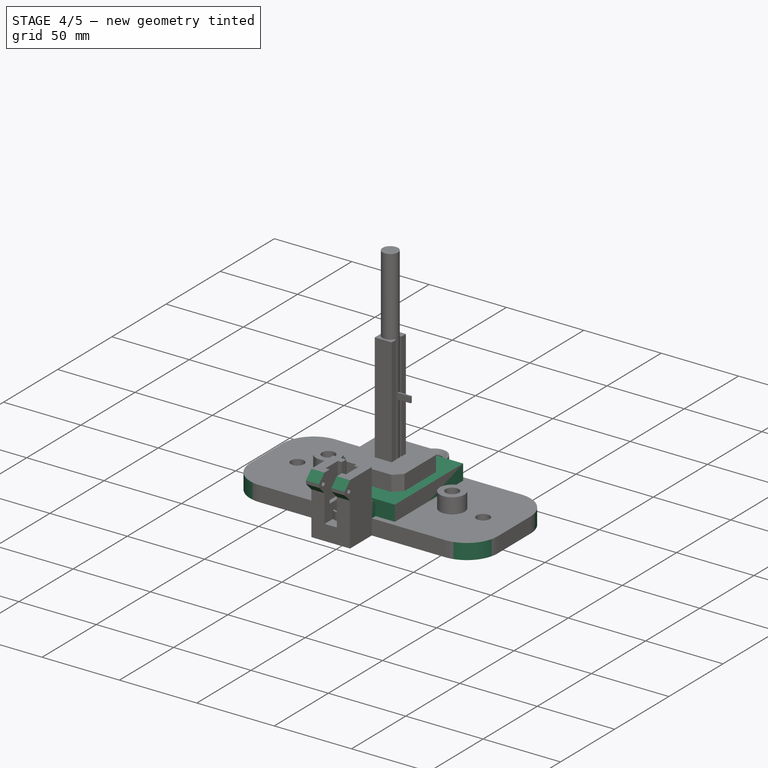
[diagram: stage 4 of 5 — iso view after this stage's code; geometry added in this stage tinted green]
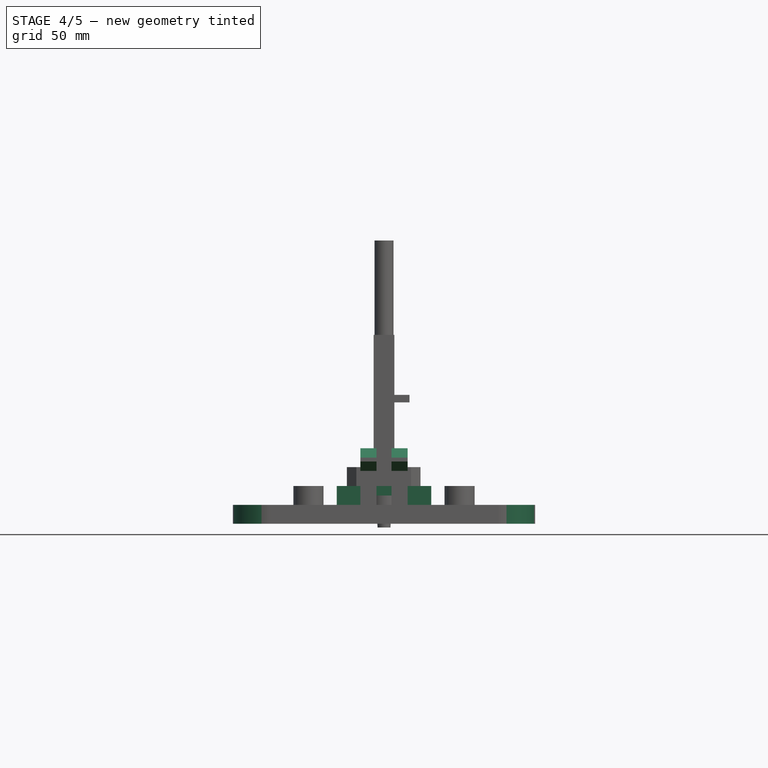
[diagram: stage 4 of 5 — front view after this stage's code; geometry added in this stage tinted green]
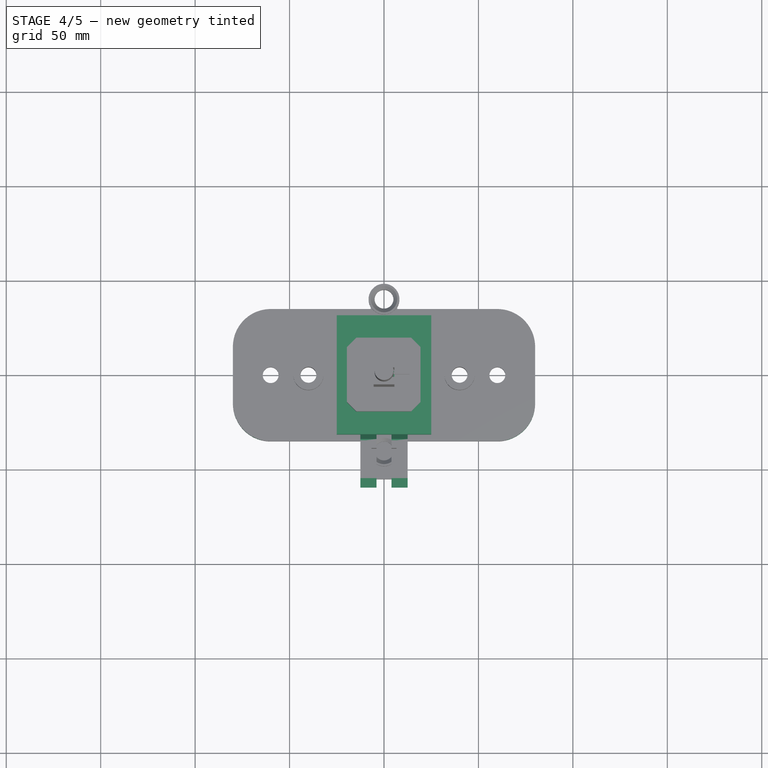
[diagram: stage 4 of 5 — top view after this stage's code; geometry added in this stage tinted green]
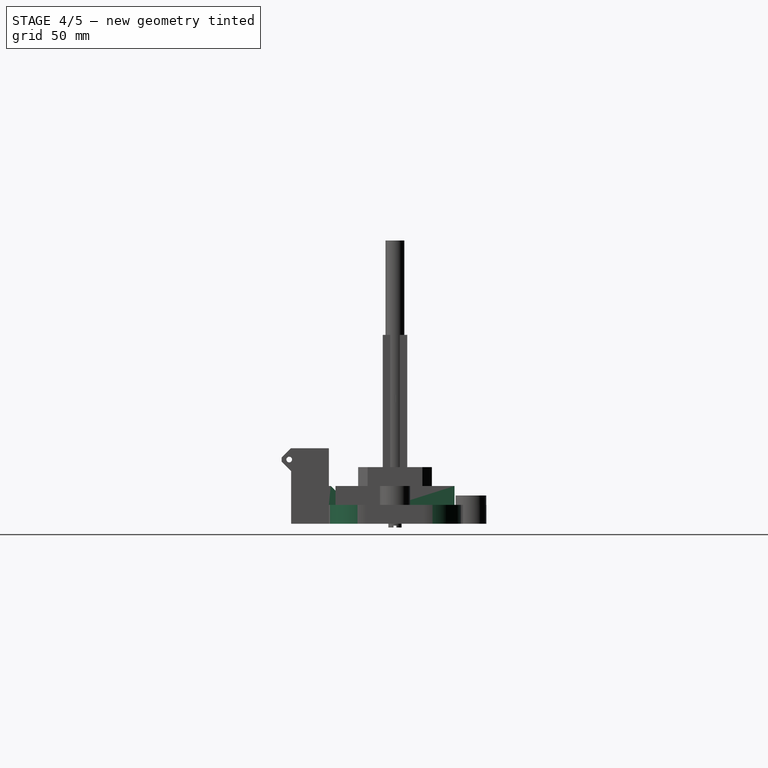
[diagram: stage 4 of 5 — right view after this stage's code; geometry added in this stage tinted green]
FEATURE [PartDesign::Body] Body004
  Group = -> [Sketch010,Pad004]
  Origin = -> Origin004
  Placement = pos=(39.9,0,0) rot=(0,0,1;0rad)
  Tip = -> Pad004
FEATURE [Sketcher::SketchObject] Sketch011
  MapMode = 5
  Support = -> [XY_Plane005]
  sketch-geometry (4):
    g0: LineSegment StartX=-25 StartY=31.5 StartZ=0 EndX=25 EndY=31.5 EndZ=0
    g1: LineSegment StartX=25 StartY=31.5 StartZ=0 EndX=25 EndY=-31.5 EndZ=0
    g2: LineSegment StartX=25 StartY=-31.5 StartZ=0 EndX=-25 EndY=-31.5 EndZ=0
    g3: LineSegment StartX=-25 StartY=-31.5 StartZ=0 EndX=-25 EndY=31.5 EndZ=0
  constraints (12):
    c: Coincident(g0,g1)
    c: Coincident(g1,g2)
    c: Coincident(g2,g3)
    c: Coincident(g3,g0)
    c: Horizontal(g0)
    c: Horizontal(g2)
    c: Vertical(g1)
    c: Vertical(g3)
    c: Distance(g1) = 63
    c: Distance(g0) = 50
    c: DistanceX(g0,g-1) = 25
    c: DistanceY(g-1,g0) = 31.5
FEATURE [PartDesign::Pad] Pad005
  Length = 20
  Length2 = 100
  Profile = -> Sketch011
  Type = 0
FEATURE [PartDesign::Body] Body005
  Group = -> [Sketch011,Pad005,Sketch012,Pocket005,Sketch013,Pocket006,Sketch014,Pocket007]
  Origin = -> Origin005
  Placement = pos=(0,10,62) rot=(1,0,0;1.5708rad)
  Tip = -> Pocket007
FEATURE [Sketcher::SketchObject] Sketch015
  MapMode = 5
  Support = -> [XY_Plane006]
  sketch-geometry (1):
    g0: Circle CenterX=0 CenterY=0 CenterZ=0 NormalX=0 NormalY=0 NormalZ=1 AngleXU=0 Radius=25
  constraints (2):
    c: Coincident(g0,g-1)
    c: Radius(g0) = 25
FEATURE [PartDesign::Pad] Pad006
  Length = 15
  Length2 = 100
  Profile = -> Sketch015
  Type = 0
FEATURE [Sketcher::SketchObject] Sketch016
  MapMode = 5
  Placement = pos=(0,0,15) rot=(0,0,1;0rad)
  Support = -> [Pad006]
  sketch-geometry (1):
    g0: Circle CenterX=0 CenterY=0 CenterZ=0 NormalX=0 NormalY=0 NormalZ=1 AngleXU=0 Radius=6.2
  constraints (2):
    c: Coincident(g0,g-1)
    c: Radius(g0) = 6.2
FEATURE [PartDesign::Pocket] Pocket008
  BaseFeature = -> Pad006
  Length = 15
  Length2 = 100
  Profile = -> Sketch016
  Type = 0
FEATURE [Sketcher::SketchObject] Sketch017
  MapMode = 5
  Placement = pos=(0,0,15) rot=(0,0,1;0rad)
  Support = -> [Pocket008]
  sketch-geometry (1):
    g0: Circle CenterX=0 CenterY=0 CenterZ=0 NormalX=0 NormalY=0 NormalZ=1 AngleXU=0 Radius=13
  constraints (2):
    c: Coincident(g0,g-1)
    c: Radius(g0) = 13
FEATURE [PartDesign::Pocket] Pocket009
  BaseFeature = -> Pocket008
  Length = 8
  Length2 = 100
  Profile = -> Sketch017
  Type = 0
FEATURE [PartDesign::Chamfer] Chamfer
  Base = -> Pocket016 [Edge143]
  BaseFeature = -> Pocket016
  Size = 4.95
FEATURE [PartDesign::Chamfer] Chamfer001
  Base = -> Chamfer [Edge62]
  BaseFeature = -> Chamfer
  Size = 4.95
FEATURE [PartDesign::Chamfer] Chamfer002
  Base = -> Chamfer001 [Edge157]
  BaseFeature = -> Chamfer001
  Size = 4.95
FEATURE [PartDesign::Chamfer] Chamfer003
  Base = -> Chamfer002 [Edge160]
  BaseFeature = -> Chamfer002
  Size = 4.95
FEATURE [PartDesign::Fillet] Fillet004
  Base = -> Chamfer003 [Edge48]
  BaseFeature = -> Chamfer003
  Radius = 20
FEATURE [PartDesign::Fillet] Fillet005
  Base = -> Fillet004 [Edge45]
  BaseFeature = -> Fillet004
  Radius = 20
FEATURE [PartDesign::Fillet] Fillet006
  Base = -> Fillet005 [Edge29]
  BaseFeature = -> Fillet005
  Radius = 20
FEATURE [PartDesign::Fillet] Fillet007
  Base = -> Fillet006 [Edge20]
  BaseFeature = -> Fillet006
  Radius = 20
FEATURE [Sketcher::SketchObject] Sketch029
  MapMode = 5
  Placement = pos=(12.5,0,0) rot=(0.57735,0.57735,0.57735;2.0944rad)
  Support = -> [Fillet007]
  sketch-geometry (4):
    g0: LineSegment StartX=-35 StartY=20 StartZ=0 EndX=-27 EndY=20 EndZ=0
    g1: LineSegment StartX=-27 StartY=20 StartZ=0 EndX=-27 EndY=10 EndZ=0
    g2: LineSegment StartX=-27 StartY=10 StartZ=0 EndX=-35 EndY=10 EndZ=0
    g3: LineSegment StartX=-35 StartY=10 StartZ=0 EndX=-35 EndY=20 EndZ=0
  constraints (12):
    c: Coincident(g0,g1)
    c: Coincident(g1,g2)
    c: Coincident(g2,g3)
    c: Coincident(g3,g0)
    c: Horizontal(g0)
    c: Horizontal(g2)
    c: Vertical(g1)
    c: Vertical(g3)
    c: DistanceY(g-1,g2) = 10
    c: DistanceX(g2,g-1) = 35
    c: Distance(g2) = 8
    c: Distance(g1) = 10
FEATURE [PartDesign::Pad] Pad012
  BaseFeature = -> Fillet007
  Length = 8.5
  Length2 = 100
  Profile = -> Sketch029
  Reversed = true
  Type = 0
FEATURE [Sketcher::SketchObject] Sketch030
  MapMode = 5
  Placement = pos=(-12.5,0,0) rot=(0.57735,-0.57735,-0.57735;2.0944rad)
  Support = -> [Pad012]
  sketch-geometry (4):
    g0: LineSegment StartX=27 StartY=20 StartZ=0 EndX=35 EndY=20 EndZ=0
    g1: LineSegment StartX=35 StartY=20 StartZ=0 EndX=35 EndY=10 EndZ=0
    g2: LineSegment StartX=35 StartY=10 StartZ=0 EndX=27 EndY=10 EndZ=0
    g3: LineSegment StartX=27 StartY=10 StartZ=0 EndX=27 EndY=20 EndZ=0
  constraints (12):
    c: Coincident(g0,g1)
    c: Coincident(g1,g2)
    c: Coincident(g2,g3)
    c: Coincident(g3,g0)
    c: Horizontal(g0)
    c: Horizontal(g2)
    c: Vertical(g1)
    c: Vertical(g3)
    c: DistanceY(g-1,g1) = 10
    c: DistanceX(g-1,g0) = 35
    c: Distance(g3) = 10
    c: Distance(g0) = 8
FEATURE [PartDesign::Pad] Pad013
  BaseFeature = -> Pad012
  Length = 8.5
  Length2 = 100
  Profile = -> Sketch030
  Reversed = true
  Type = 0
FEATURE [PartDesign::Chamfer] Chamfer004
  Base = -> Pad013 [Edge111]
  BaseFeature = -> Pad013
  Size = 7
FEATURE [PartDesign::Chamfer] Chamfer005
  Base = -> Chamfer004 [Edge94]
  BaseFeature = -> Chamfer004
  Size = 7
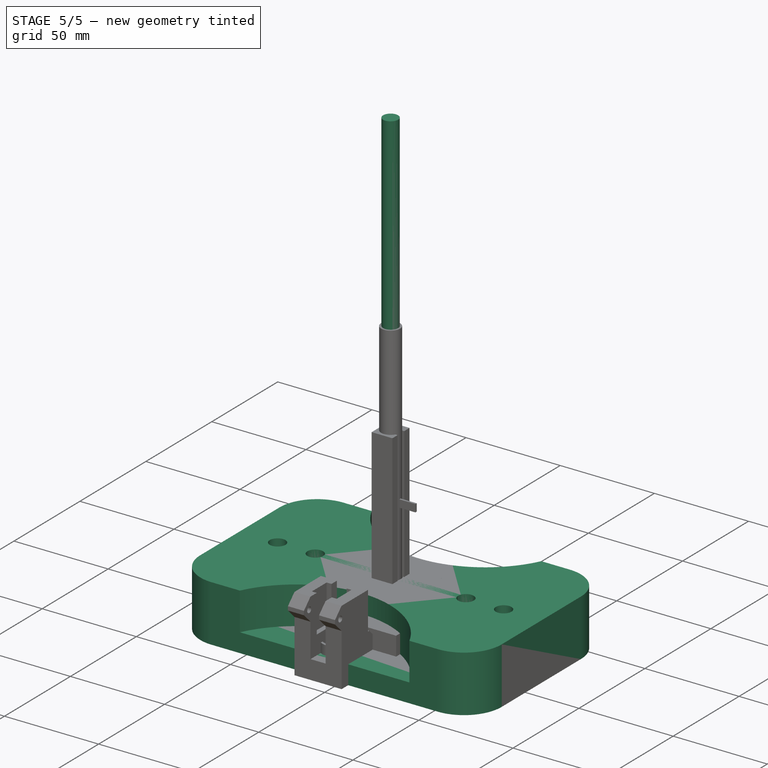
[diagram: stage 5 of 5 — iso view after this stage's code; geometry added in this stage tinted green]
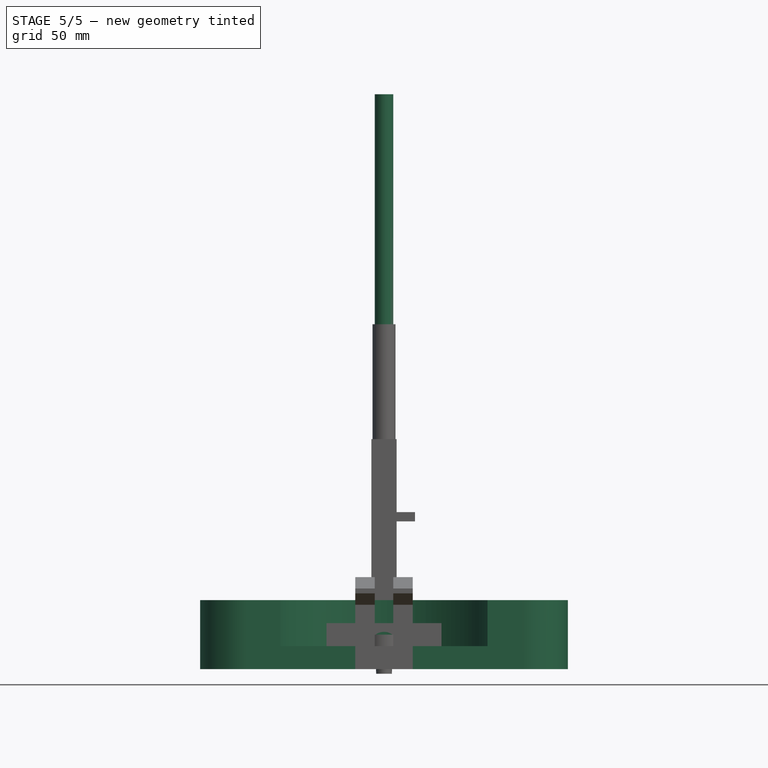
[diagram: stage 5 of 5 — front view after this stage's code; geometry added in this stage tinted green]
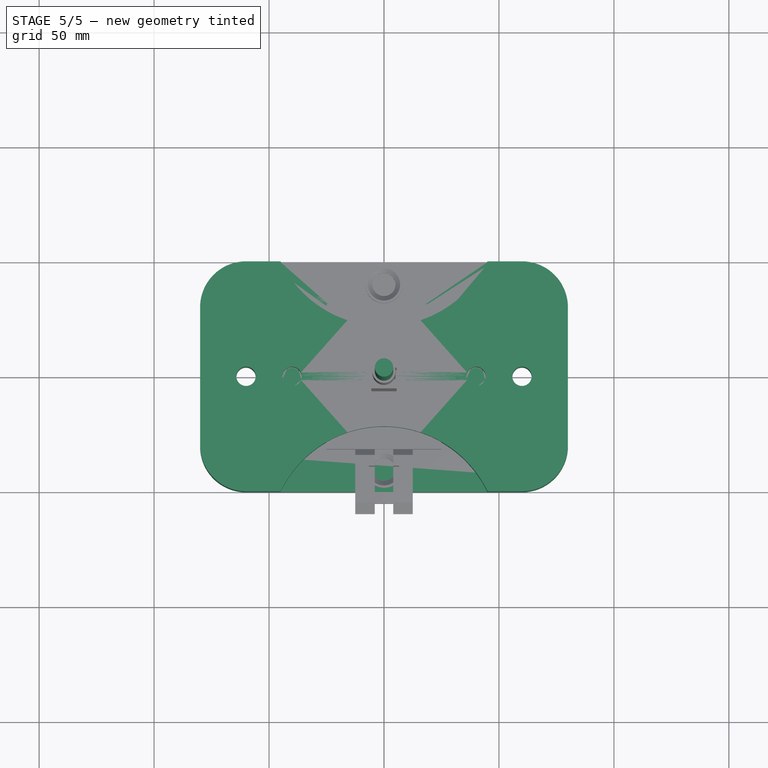
[diagram: stage 5 of 5 — top view after this stage's code; geometry added in this stage tinted green]
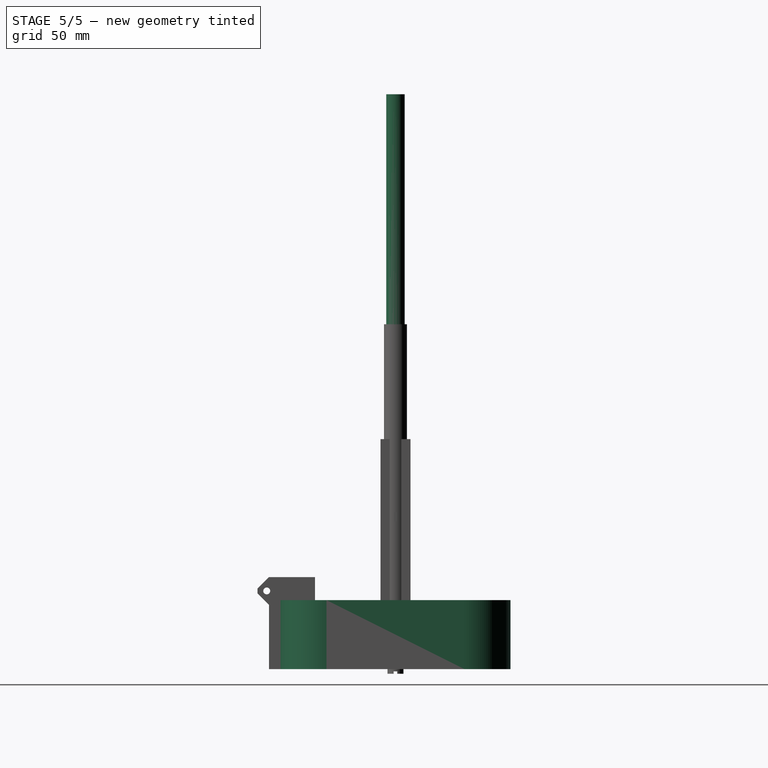
[diagram: stage 5 of 5 — right view after this stage's code; geometry added in this stage tinted green]
FEATURE [Sketcher::SketchObject] Sketch
  MapMode = 5
  Support = -> [XY_Plane]
  sketch-geometry (4):
    g0: LineSegment StartX=-80 StartY=50 StartZ=0 EndX=80 EndY=50 EndZ=0
    g1: LineSegment StartX=80 StartY=50 StartZ=0 EndX=80 EndY=-50 EndZ=0
    g2: LineSegment StartX=80 StartY=-50 StartZ=0 EndX=-80 EndY=-50 EndZ=0
    g3: LineSegment StartX=-80 StartY=-50 StartZ=0 EndX=-80 EndY=50 EndZ=0
  constraints (12):
    c: Coincident(g0,g1)
    c: Coincident(g1,g2)
    c: Coincident(g2,g3)
    c: Coincident(g3,g0)
    c: Horizontal(g0)
    c: Horizontal(g2)
    c: Vertical(g1)
    c: Vertical(g3)
    c: Distance(g2) = 160
    c: Distance(g1) = 100
    c: DistanceX(g2,g-1) = 80
    c: DistanceY(g1,g-1) = 50
FEATURE [PartDesign::Pad] Pad
  Length = 30
  Length2 = 100
  Profile = -> Sketch
  Type = 0
FEATURE [Sketcher::SketchObject] Sketch001
  MapMode = 5
  Placement = pos=(0,0,30) rot=(0,0,1;0rad)
  Support = -> [Pad]
  sketch-geometry (3):
    g0: Circle CenterX=2e-16 CenterY=0 CenterZ=0 NormalX=0 NormalY=0 NormalZ=1 AngleXU=0 Radius=6
    g1: Circle CenterX=60 CenterY=0 CenterZ=0 NormalX=0 NormalY=0 NormalZ=1 AngleXU=0 Radius=4.2
    g2: Circle CenterX=-60 CenterY=0 CenterZ=0 NormalX=0 NormalY=0 NormalZ=1 AngleXU=0 Radius=4.2
  constraints (8):
    c: Coincident(g0,g-1)
    c: Radius(g0) = 6
    c: Radius(g1) = 4.2
    c: Radius(g2) = 4.2
    c: PointOnObject(g1,g-1)
    c: PointOnObject(g2,g-1)
    c: DistanceX(g0,g1) = 60
    c: DistanceX(g2,g0) = 60
FEATURE [PartDesign::Pocket] Pocket
  BaseFeature = -> Pad
  Length = 30
  Length2 = 100
  Profile = -> Sketch001
  Type = 0
FEATURE [Sketcher::SketchObject] Sketch002
  MapMode = 5
  Placement = pos=(0,0,0) rot=(1,0,0;3.14159rad)
  Support = -> [Pocket]
  sketch-geometry (14):
    g0: LineSegment StartX=-52.4367 StartY=0 StartZ=0 EndX=-56.2184 EndY=6.55 EndZ=0
    g1: LineSegment StartX=-56.2184 StartY=6.55 StartZ=0 EndX=-63.7816 EndY=6.55 EndZ=0
    g2: LineSegment StartX=-63.7816 StartY=6.55 StartZ=0 EndX=-67.5633 EndY=0 EndZ=0
    g3: LineSegment StartX=-67.5633 StartY=0 StartZ=0 EndX=-63.7816 EndY=-6.55 EndZ=0
    g4: LineSegment StartX=-63.7816 StartY=-6.55 StartZ=0 EndX=-56.2184 EndY=-6.55 EndZ=0
    g5: LineSegment StartX=-56.2184 StartY=-6.55 StartZ=0 EndX=-52.4367 EndY=0 EndZ=0
    g6: Circle [constr] CenterX=-60 CenterY=0 CenterZ=0 NormalX=0 NormalY=0 NormalZ=1 AngleXU=0 Radius=7.56329
    g7: LineSegment StartX=67.5633 StartY=-9e-16 StartZ=0 EndX=63.7816 EndY=6.55 EndZ=0
    g8: LineSegment StartX=63.7816 StartY=6.55 StartZ=0 EndX=56.2184 EndY=6.55 EndZ=0
    g9: LineSegment StartX=56.2184 StartY=6.55 StartZ=0 EndX=52.4367 EndY=0 EndZ=0
    g10: LineSegment StartX=52.4367 StartY=0 StartZ=0 EndX=56.2184 EndY=-6.55 EndZ=0
    g11: LineSegment StartX=56.2184 StartY=-6.55 StartZ=0 EndX=63.7816 EndY=-6.55 EndZ=0
    g12: LineSegment StartX=63.7816 StartY=-6.55 StartZ=0 EndX=67.5633 EndY=-9e-16 EndZ=0
    g13: Circle [constr] CenterX=60 CenterY=0 CenterZ=0 NormalX=0 NormalY=0 NormalZ=1 AngleXU=0 Radius=7.56329
  constraints (34):
    c: Coincident(g0,g1)
    c: Coincident(g1,g2)
    c: Coincident(g2,g3)
    c: Coincident(g3,g4)
    c: Coincident(g4,g5)
    c: Coincident(g5,g0)
    c: Equal(g0, g1-g5) x5
    c: PointOnObject(g0,g6)
    c: PointOnObject(g1,g6)
    c: PointOnObject(g2,g6)
    c: PointOnObject(g3,g6)
    c: PointOnObject(g4,g6)
    c: PointOnObject(g5,g6)
    c: Coincident(g7,g8)
    c: Coincident(g8,g9)
    c: Coincident(g9,g10)
    c: Coincident(g10,g11)
    c: Coincident(g11,g12)
    c: Coincident(g12,g7)
    c: Equal(g7, g8-g12) x5
    c: PointOnObject(g7,g13)
    c: PointOnObject(g8,g13)
    c: PointOnObject(g9,g13)
    c: PointOnObject(g10,g13)
    c: PointOnObject(g11,g13)
    c: PointOnObject(g12,g13)
    c: PointOnObject(g13,g-1)
    c: PointOnObject(g6,g-1)
    c: Distance(g2,g4) = 13.1
    c: Distance(g9,g11) = 13.1
    c: Parallel(g11,g-1)
    c: Parallel(g4,g-1)
    c: DistanceX(g6,g-1) = 60
    c: DistanceX(g-1,g13) = 60
FEATURE [PartDesign::Pocket] Pocket001
  BaseFeature = -> Pocket
  Length = 8
  Length2 = 100
  Profile = -> Sketch002
  Type = 0
FEATURE [Sketcher::SketchObject] Sketch003
  MapMode = 5
  Placement = pos=(0,0,0) rot=(1,0,0;3.14159rad)
  Support = -> [Pocket001]
  sketch-geometry (1):
    g0: Circle CenterX=0 CenterY=0 CenterZ=0 NormalX=0 NormalY=0 NormalZ=1 AngleXU=0 Radius=15
  constraints (2):
    c: Coincident(g0,g-1)
    c: Radius(g0) = 15
FEATURE [PartDesign::Pocket] Pocket002
  BaseFeature = -> Pocket001
  Length = 10
  Length2 = 100
  Profile = -> Sketch003
  Type = 0
FEATURE [PartDesign::Fillet] Fillet
  Base = -> Pocket002 [Edge1]
  BaseFeature = -> Pocket002
  Radius = 20
FEATURE [Sketcher::SketchObject] Sketch004
  MapMode = 5
  Placement = pos=(0,0,30) rot=(0,0,1;0rad)
  sketch-geometry (4):
    g0: ArcOfCircle CenterX=0 CenterY=71.7945 CenterZ=0 NormalX=0 NormalY=0 NormalZ=1 AngleXU=0 Radius=50 StartAngle=3.59262 EndAngle=5.83216
    g1: ArcOfCircle CenterX=0 CenterY=-71.7945 CenterZ=0 NormalX=0 NormalY=0 NormalZ=1 AngleXU=0 Radius=50 StartAngle=0.451027 EndAngle=2.69057
    g2: LineSegment StartX=-45 StartY=50 StartZ=0 EndX=45 EndY=50 EndZ=0
    g3: LineSegment StartX=-45 StartY=-50 StartZ=0 EndX=45 EndY=-50 EndZ=0
  constraints (14):
    c: PointOnObject(g0,g-2)
    c: DistanceY(g-1,g0) = 50
    c: DistanceY(g-1,g0) = 50
    c: DistanceX(g0,g-1) = 45
    c: Radius(g0) = 50
    c: PointOnObject(g1,g-2)
    c: DistanceY(g1,g-1) = 50
    c: DistanceY(g1,g-1) = 50
    c: DistanceX(g-1,g1) = 45
    c: Radius(g1) = 50
    c: Coincident(g3,g1)
    c: Coincident(g3,g1)
    c: Coincident(g2,g0)
    c: Coincident(g2,g0)
FEATURE [PartDesign::Pocket] Pocket003
  BaseFeature = -> Fillet
  Length = 20
  Length2 = 100
  Profile = -> Sketch004
  Type = 0
FEATURE [PartDesign::Fillet] Fillet001
  Base = -> Pocket003 [Edge26]
  BaseFeature = -> Pocket003
  Radius = 20
FEATURE [PartDesign::Fillet] Fillet002
  Base = -> Fillet001 [Edge21]
  BaseFeature = -> Fillet001
  Radius = 20
FEATURE [PartDesign::Fillet] Fillet003
  Base = -> Fillet002 [Edge34]
  BaseFeature = -> Fillet002
  Radius = 20
FEATURE [Sketcher::SketchObject] Sketch006
  MapMode = 5
  Placement = pos=(0,0,30) rot=(0,0,1;0rad)
  Support = -> [Fillet003]
  sketch-geometry (2):
    g0: Circle CenterX=-40 CenterY=0 CenterZ=0 NormalX=0 NormalY=0 NormalZ=1 AngleXU=0 Radius=4.2
    g1: Circle CenterX=40 CenterY=0 CenterZ=0 NormalX=0 NormalY=0 NormalZ=1 AngleXU=0 Radius=4.2
  constraints (6):
    c: PointOnObject(g0,g-1)
    c: PointOnObject(g1,g-1)
    c: Radius(g1) = 4.2
    c: Radius(g0) = 4.2
    c: DistanceX(g0,g-1) = 40
    c: DistanceX(g-1,g1) = 40
FEATURE [PartDesign::Pocket] Pocket004
  BaseFeature = -> Fillet003
  Length = 20
  Length2 = 100
  Profile = -> Sketch006
  Type = 0
FEATURE [PartDesign::Body] Body
  Group = -> [Sketch,Pad,Sketch001,Pocket,Sketch002,Pocket001,Sketch003,Pocket002,Fillet,Sketch004,Pocket003,Fillet001,Fillet002,Fillet003,Sketch006,Pocket004]
  Origin = -> Origin
  Tip = -> Pocket004
FEATURE [Sketcher::SketchObject] Sketch007
  MapMode = 5
  Support = -> [XY_Plane001]
  sketch-geometry (1):
    g0: Circle CenterX=0 CenterY=0 CenterZ=0 NormalX=0 NormalY=0 NormalZ=1 AngleXU=0 Radius=4
  constraints (2):
    c: Coincident(g0,g-1)
    c: Radius(g0) = 4
FEATURE [PartDesign::Pad] Pad001
  Length = 250
  Length2 = 100
  Profile = -> Sketch007
  Type = 0
FEATURE [PartDesign::Body] Body001
  Group = -> [Sketch007,Pad001]
  Origin = -> Origin001
  Placement = pos=(-60.1,0,0) rot=(0,0,1;0rad)
  Tip = -> Pad001
FEATURE [Sketcher::SketchObject] Sketch008
  MapMode = 5
  Support = -> [XY_Plane002]
  sketch-geometry (1):
    g0: Circle CenterX=0 CenterY=0 CenterZ=0 NormalX=0 NormalY=0 NormalZ=1 AngleXU=0 Radius=4
  constraints (2):
    c: Coincident(g0,g-1)
    c: Radius(g0) = 4
FEATURE [PartDesign::Pad] Pad002
  Length = 250
  Length2 = 100
  Profile = -> Sketch008
  Type = 0
FEATURE [PartDesign::Body] Body002
  Group = -> [Sketch008,Pad002]
  Origin = -> Origin002
  Placement = pos=(-40,0,0) rot=(0,0,1;0rad)
  Tip = -> Pad002
FEATURE [Sketcher::SketchObject] Sketch009
  MapMode = 5
  Support = -> [XY_Plane003]
  sketch-geometry (1):
    g0: Circle CenterX=0 CenterY=0 CenterZ=0 NormalX=0 NormalY=0 NormalZ=1 AngleXU=0 Radius=4
  constraints (2):
    c: Coincident(g0,g-1)
    c: Radius(g0) = 4
FEATURE [PartDesign::Pad] Pad003
  Length = 250
  Length2 = 100
  Profile = -> Sketch009
  Type = 0
FEATURE [PartDesign::Body] Body003
  Group = -> [Sketch009,Pad003]
  Origin = -> Origin003
  Placement = pos=(60,0,0) rot=(0,0,1;0rad)
  Tip = -> Pad003
FEATURE [Sketcher::SketchObject] Sketch010
  MapMode = 5
  Support = -> [XY_Plane004]
  sketch-geometry (1):
    g0: Circle CenterX=0 CenterY=0 CenterZ=0 NormalX=0 NormalY=0 NormalZ=1 AngleXU=0 Radius=4
  constraints (2):
    c: Coincident(g0,g-1)
    c: Radius(g0) = 4
FEATURE [PartDesign::Pad] Pad004
  Length = 250
  Length2 = 100
  Profile = -> Sketch010
  Type = 0
FEATURE [Sketcher::SketchObject] Sketch012
  MapMode = 5
  Placement = pos=(0,0,20) rot=(0,0,1;0rad)
  Support = -> [Pad005]
  sketch-geometry (8):
    g0: LineSegment StartX=-5 StartY=20 StartZ=0 EndX=25 EndY=20 EndZ=0
    g1: LineSegment StartX=25 StartY=20 StartZ=0 EndX=25 EndY=10 EndZ=0
    g2: LineSegment StartX=25 StartY=10 StartZ=0 EndX=-5 EndY=10 EndZ=0
    g3: LineSegment StartX=-5 StartY=10 StartZ=0 EndX=-5 EndY=20 EndZ=0
    g4: LineSegment StartX=-25 StartY=-10 StartZ=0 EndX=5 EndY=-10 EndZ=0
    g5: LineSegment StartX=5 StartY=-10 StartZ=0 EndX=5 EndY=-20 EndZ=0
    g6: LineSegment StartX=5 StartY=-20 StartZ=0 EndX=-25 EndY=-20 EndZ=0
    g7: LineSegment StartX=-25 StartY=-20 StartZ=0 EndX=-25 EndY=-10 EndZ=0
  constraints (24):
    c: Coincident(g0,g1)
    c: Coincident(g1,g2)
    c: Coincident(g2,g3)
    c: Coincident(g3,g0)
    c: Horizontal(g0)
    c: Horizontal(g2)
    c: Vertical(g1)
    c: Vertical(g3)
    c: Coincident(g4,g5)
    c: Coincident(g5,g6)
    c: Coincident(g6,g7)
    c: Coincident(g7,g4)
    c: Horizontal(g4)
    c: Horizontal(g6)
    c: Vertical(g5)
    c: Vertical(g7)
    c: Distance(g2) = 30
    c: Distance(g4) = 30
    c: DistanceX(g4,g-1) = 25
    c: DistanceX(g0,g-1) = 5
    c: DistanceY(g-1,g1) = 10
    c: DistanceY(g4,g-1) = 10
    c: Distance(g1) = 10
    c: Distance(g7) = 10
FEATURE [PartDesign::Pocket] Pocket005
  BaseFeature = -> Pad005
  Length = 20
  Length2 = 100
  Profile = -> Sketch012
  Type = 0
FEATURE [Sketcher::SketchObject] Sketch013
  MapMode = 5
  Placement = pos=(0,31.5,0) rot=(0,0.707107,0.707107;3.14159rad)
  Support = -> [Pocket005]
  sketch-geometry (1):
    g0: Circle CenterX=0 CenterY=10 CenterZ=0 NormalX=0 NormalY=0 NormalZ=1 AngleXU=0 Radius=6.2
  constraints (3):
    c: DistanceY(g-1,g0) = 10
    c: Radius(g0) = 6.2
    c: PointOnObject(g0,g-2)
FEATURE [PartDesign::Pocket] Pocket006
  BaseFeature = -> Pocket005
  Length = 11.5
  Length2 = 100
  Profile = -> Sketch013
  Type = 0
FEATURE [Sketcher::SketchObject] Sketch014
  MapMode = 5
  Placement = pos=(0,-31.5,0) rot=(1,0,0;1.5708rad)
  Support = -> [Pocket006]
  sketch-geometry (1):
    g0: Circle CenterX=0 CenterY=10 CenterZ=0 NormalX=0 NormalY=0 NormalZ=1 AngleXU=0 Radius=6.2
  constraints (3):
    c: Radius(g0) = 6.2
    c: PointOnObject(g0,g-2)
    c: DistanceY(g-1,g0) = 10
FEATURE [PartDesign::Pocket] Pocket007
  BaseFeature = -> Pocket006
  Length = 11.5
  Length2 = 100
  Profile = -> Sketch014
  Type = 0
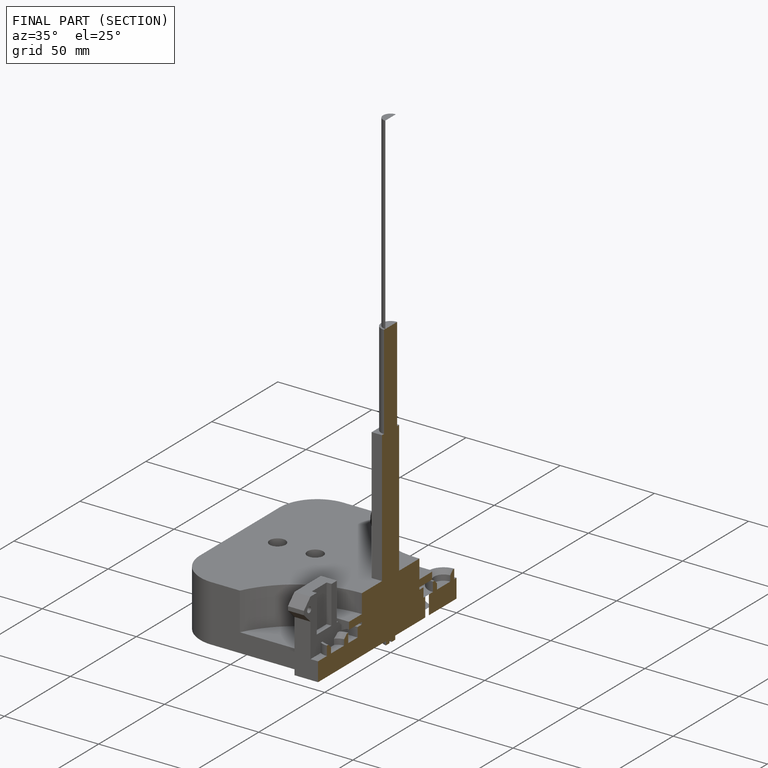
[diagram: finished part — half-section view (interior)]
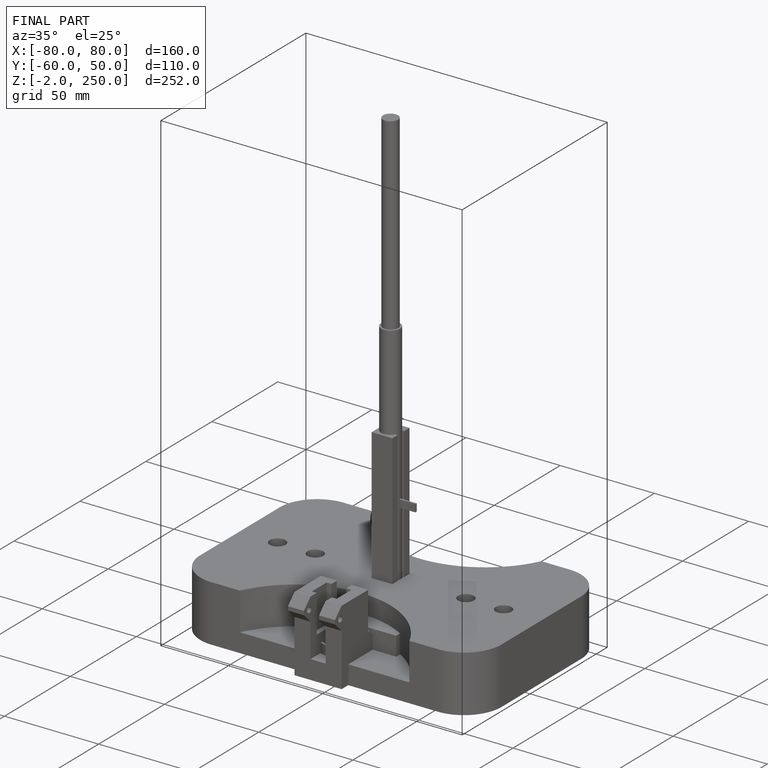
[diagram: finished part — iso view with bounding-box wireframe]
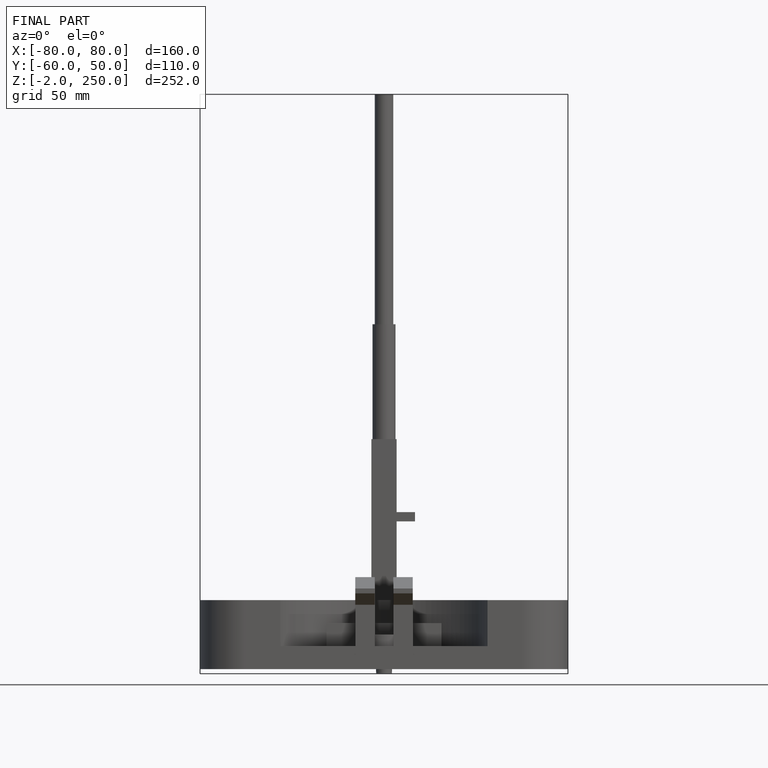
[diagram: finished part — front view with bounding-box wireframe]
